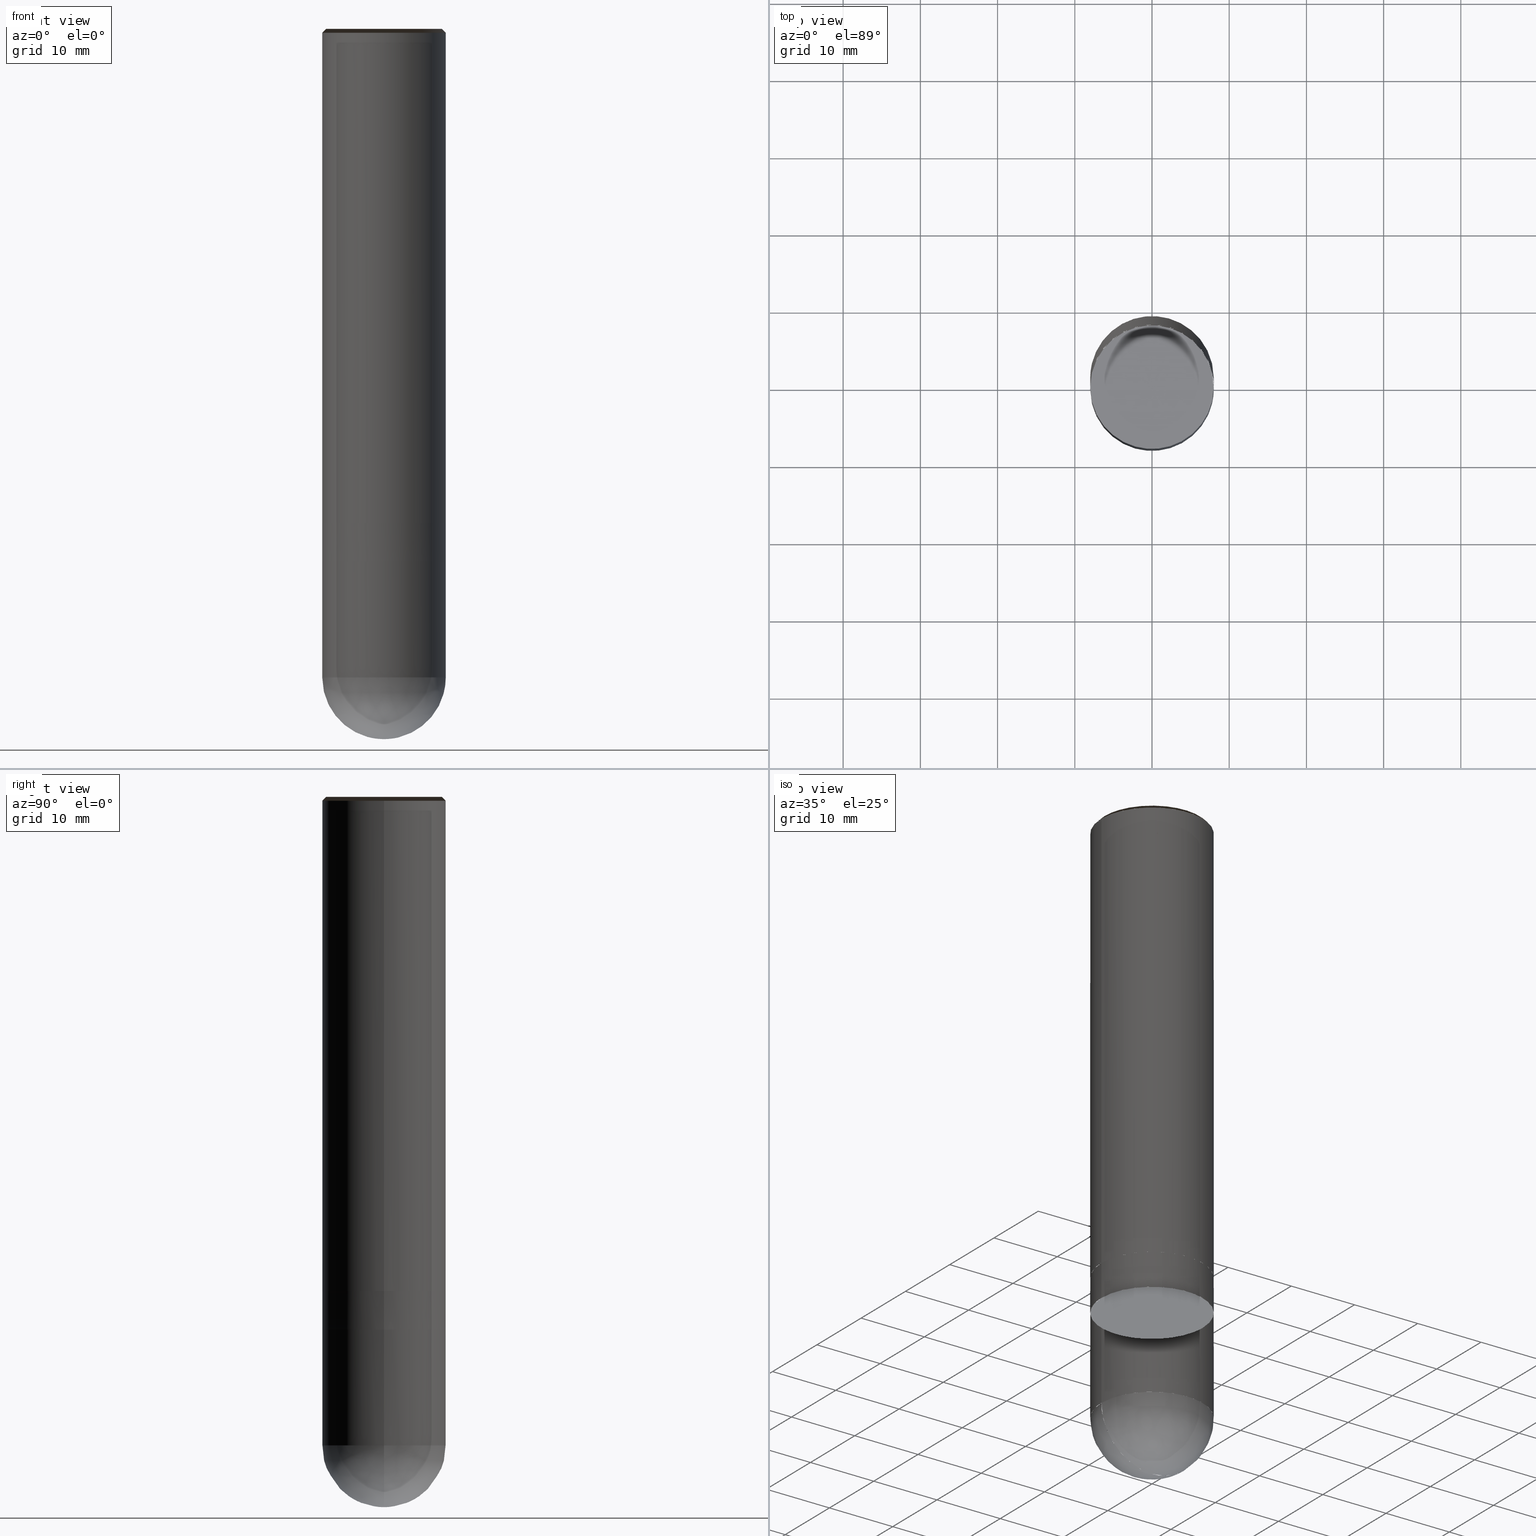
[diagram: canonical four-view strip — front | top / right | iso, engineering-drawing reading convention]
A machine part, canonical four-view strip (front | top / right | iso — engineering-drawing reading convention). The complete STEP part file that produces these views, byte-faithful:
ISO-10303-21;
HEADER;
/* Generated by ISBE GmbH (www.isbe.de) */
/* OPTION: using custom schema-name function */

FILE_DESCRIPTION(
/* description */ (''),
/* implementation_level */ '2;1');

FILE_NAME(
/*name*/ 'Drawing No  1241600   Issue 1',
/*time_stamp*/'2021-9-29T7:49:13',
/*author*/ ('ISBE GmbH'),
/*organization*/ ('ISBE GmbH'),
/*preprocessor_version*/ 'STEP IO v1.0',
/*originating_system*/ '',
/*authorisation*/ '');

FILE_SCHEMA (('AUTOMOTIVE_DESIGN'));
ENDSEC;

DATA;
#10=SHAPE_DEFINITION_REPRESENTATION(#11,#57);
#11=PRODUCT_DEFINITION_SHAPE('Document','',#13);
#12=PRODUCT_DEFINITION_CONTEXT('3D Mechanical Parts',#17,'design');
#13=PRODUCT_DEFINITION('A','First version',#14,#12);
#14=PRODUCT_DEFINITION_FORMATION_WITH_SPECIFIED_SOURCE('A','First version',#19,.MADE.);
#15=PRODUCT_RELATED_PRODUCT_CATEGORY('tool','tool',(#19));
#16=APPLICATION_PROTOCOL_DEFINITION('Draft International Standard', 'automotive_design',1999,#17);
#17=APPLICATION_CONTEXT('data for automotive mechanical design processes');
#18=PRODUCT_CONTEXT('3D Mechanical Parts',#17,'mechanical');
#19=PRODUCT('Document','Document','ISBE converted to STEP',(#18));
#20=(
LENGTH_UNIT()
NAMED_UNIT(*)
SI_UNIT(.MILLI.,.METRE.)
);
#21=(
NAMED_UNIT(*)
PLANE_ANGLE_UNIT()
SI_UNIT($,.RADIAN.)
);
#22=DIMENSIONAL_EXPONENTS(0.,0.,0.,0.,0.,0.,0.);
#23=PLANE_ANGLE_MEASURE_WITH_UNIT(PLANE_ANGLE_MEASURE(0.01745329252),#21);
#24=(
CONVERSION_BASED_UNIT('DEGREES',#23)
NAMED_UNIT(#22)
PLANE_ANGLE_UNIT()
);
#25=(
NAMED_UNIT(*)
SI_UNIT($,.STERADIAN.)
SOLID_ANGLE_UNIT()
);
#26=UNCERTAINTY_MEASURE_WITH_UNIT(LENGTH_MEASURE(0.001),#20, 'DISTANCE_ACCURACY_VALUE', 'Maximum model space distance between geometric entities at asserted connectivities');
#27=(
GEOMETRIC_REPRESENTATION_CONTEXT(3)
GLOBAL_UNCERTAINTY_ASSIGNED_CONTEXT((#26))
GLOBAL_UNIT_ASSIGNED_CONTEXT((#25,#24,#20))
REPRESENTATION_CONTEXT('ID1','3D')
);
#28=CARTESIAN_POINT('',(0.0,0.0,0.0));
#29=DIRECTION('',(1.0,0.0,0.0));
#30=DIRECTION('',(0.0,0.0,1.0));
#31=AXIS2_PLACEMENT_3D('',#28,#30,#29);
#32=CARTESIAN_POINT('',(0.0,0.0,0.0));
#33=DIRECTION('',(1.0,0.0,0.0));
#34=DIRECTION('',(0.0,0.0,1.0));
#35=AXIS2_PLACEMENT_3D('',#32,#34,#33);
#36=CARTESIAN_POINT('',(0.0,0.0,0.0));
#37=DIRECTION('',(1.0,0.0,0.0));
#38=DIRECTION('',(0.0,0.0,1.0));
#39=AXIS2_PLACEMENT_3D('',#36,#38,#37);
#40=CARTESIAN_POINT('',(0.0,0.0,0.0));
#41=DIRECTION('',(0.0,0.0,1.0));
#42=DIRECTION('',(1.0,0.0,0.0));
#43=AXIS2_PLACEMENT_3D('MCS',#40,#42,#41);
#44=CARTESIAN_POINT('',(0.0,0.0,64.0));
#45=DIRECTION('',(0.0,0.0,1.0));
#46=DIRECTION('',(1.0,0.0,0.0));
#47=AXIS2_PLACEMENT_3D('PCS',#44,#46,#45);
#48=CARTESIAN_POINT('',(0.0,0.0,-28.0));
#49=DIRECTION('',(0.0,0.0,1.0));
#50=DIRECTION('',(1.0,0.0,0.0));
#51=AXIS2_PLACEMENT_3D('CIP',#48,#50,#49);
#52=CARTESIAN_POINT('',(0.0,-8.0,-28.0));
#53=DIRECTION('',(0.0,0.0,1.0));
#54=DIRECTION('',(1.0,0.0,0.0));
#55=AXIS2_PLACEMENT_3D('CRP',#52,#54,#53);
#57=SHAPE_REPRESENTATION('Document',(#31,#35,#39,#43,#47,#51,#55),#27);
#58=DIRECTION('',(1.0,0.0,0.0));
#59=DIRECTION('',(0.0,0.0,1.0));
#60=CARTESIAN_POINT('',(-0.079995925518,-0.000807403523,-27.998717607461));
#61=CARTESIAN_POINT('',(-0.077487366167,-0.244424098799,-27.995889729606));
#62=CARTESIAN_POINT('',(-0.074331663513,-0.507143334232,-27.983563142003));
#63=CARTESIAN_POINT('',(-0.070315368472,-0.764959296461,-27.963032903594));
#64=CARTESIAN_POINT('',(-0.064958547675,-1.020952873464,-27.934320110586));
#65=CARTESIAN_POINT('',(-0.057815376368,-1.275489505215,-27.897454267316));
#66=CARTESIAN_POINT('',(-0.048453616472,-1.528501230611,-27.852473255929));
#67=CARTESIAN_POINT('',(-0.036453837751,-1.779794186089,-27.799423297455));
#68=CARTESIAN_POINT('',(-0.021410939883,-2.029123712272,-27.738358904312));
#69=CARTESIAN_POINT('',(-0.002936150291,-2.276218799343,-27.669342824293));
#70=CARTESIAN_POINT('',(0.019340866378,-2.520791548525,-27.592445976085));
#71=CARTESIAN_POINT('',(0.045769891528,-2.762541302717,-27.507747376398));
#72=CARTESIAN_POINT('',(0.076678069294,-3.001156655452,-27.415334058768));
#73=CARTESIAN_POINT('',(0.112367878369,-3.23631657468,-27.315300984127));
#74=CARTESIAN_POINT('',(0.15311517444,-3.467691174813,-27.207750943219));
#75=CARTESIAN_POINT('',(0.19916731665,-3.694942388735,-27.092794450984));
#76=CARTESIAN_POINT('',(0.250741390973,-3.917724667319,-26.970549632987));
#77=CARTESIAN_POINT('',(0.308022543408,-4.135685774457,-26.841142104043));
#78=CARTESIAN_POINT('',(0.37116243611,-4.348467714736,-26.704704839135));
#79=CARTESIAN_POINT('',(0.44027783981,-4.555707813534,-26.561378036776));
#80=CARTESIAN_POINT('',(0.51544937598,-4.757039958694,-26.411308974944));
#81=CARTESIAN_POINT('',(0.596720422218,-4.952096005845,-26.254651859744));
#82=CARTESIAN_POINT('',(0.684096194111,-5.140507344235,-26.091567666953));
#83=CARTESIAN_POINT('',(0.777543016489,-5.32190661591,-25.922223976603));
#84=CARTESIAN_POINT('',(0.87698779635,-5.495929577675,-25.746794800782));
#85=CARTESIAN_POINT('',(0.982317708936,-5.662217092359,-25.565460404828));
#86=CARTESIAN_POINT('',(1.093380107354,-5.820417233317,-25.378407122091));
#87=CARTESIAN_POINT('',(1.209982664884,-5.970187483802,-25.185827162462));
#88=CARTESIAN_POINT('',(1.331893757557,-6.11119701083,-24.98791841487));
#89=CARTESIAN_POINT('',(1.458843092871,-6.243128991345,-24.78488424393));
#90=CARTESIAN_POINT('',(1.590522588567,-6.36568296703,-24.576933280977));
#91=CARTESIAN_POINT('',(1.726587503259,-6.478577202867,-24.364279209684));
#92=CARTESIAN_POINT('',(1.866657818415,-6.581551023631,-24.147140546484));
#93=CARTESIAN_POINT('',(2.010319868791,-6.674367101912,-23.925740416032));
#94=CARTESIAN_POINT('',(2.15712821587,-6.75681367097,-23.700306321927));
#95=CARTESIAN_POINT('',(2.306607756295,-6.828706635819,-23.47106991294));
#96=CARTESIAN_POINT('',(2.458256054679,-6.889891556331,-23.238266744979));
#97=CARTESIAN_POINT('',(2.611545887569,-6.940245476944,-23.002136039035));
#98=CARTESIAN_POINT('',(2.765927982821,-6.979678578678,-22.76292043537));
#99=CARTESIAN_POINT('',(2.920833936192,-7.008135630606,-22.520865744189));
#100=CARTESIAN_POINT('',(3.075679284702,-7.025597219752,-22.276220693048));
#101=CARTESIAN_POINT('',(3.229866714167,-7.032080740482,-22.029236671276));
#102=CARTESIAN_POINT('',(3.382789376464,-7.027641126819,-21.780167471651));
#103=CARTESIAN_POINT('',(3.53383429045,-7.012371313808,-21.529269029611));
#104=CARTESIAN_POINT('',(3.682385799139,-6.986402416884,-21.276799160267));
#105=CARTESIAN_POINT('',(3.827829054737,-6.949903621272,-21.023017293476));
#106=CARTESIAN_POINT('',(3.969553502474,-6.903081776621,-20.768184207261));
#107=CARTESIAN_POINT('',(4.106956333882,-6.84618069539,-20.512561759846));
#108=CARTESIAN_POINT('',(4.239445880242,-6.779480156805,-20.256412620573));
#109=CARTESIAN_POINT('',(4.366444917386,-6.70329462156,-20.0));
#110=CARTESIAN_POINT('',(4.414468104312,-6.671766734232,-19.900497512438));
#111=CARTESIAN_POINT('',(4.462263654075,-6.639894809522,-19.800995024876));
#112=CARTESIAN_POINT('',(4.509829102042,-6.607680490942,-19.701492537313));
#113=CARTESIAN_POINT('',(4.557161995446,-6.57512543966,-19.601990049751));
#114=CARTESIAN_POINT('',(4.60425989351,-6.542231334416,-19.502487562189));
#115=CARTESIAN_POINT('',(4.651120367578,-6.508999871432,-19.402985074627));
#116=CARTESIAN_POINT('',(4.697741001234,-6.475432764328,-19.303482587065));
#117=CARTESIAN_POINT('',(4.744119390432,-6.441531744029,-19.203980099502));
#118=CARTESIAN_POINT('',(4.790253143616,-6.407298558681,-19.10447761194));
#119=CARTESIAN_POINT('',(4.836139881846,-6.372734973559,-19.004975124378));
#120=CARTESIAN_POINT('',(4.881777238919,-6.337842770973,-18.905472636816));
#121=CARTESIAN_POINT('',(4.927162861491,-6.302623750181,-18.805970149254));
#122=CARTESIAN_POINT('',(4.972294409202,-6.267079727291,-18.706467661692));
#123=CARTESIAN_POINT('',(5.017169554789,-6.231212535173,-18.606965174129));
#124=CARTESIAN_POINT('',(5.061785984214,-6.19502402336,-18.507462686567));
#125=CARTESIAN_POINT('',(5.10614139678,-6.158516057955,-18.407960199005));
#126=CARTESIAN_POINT('',(5.150233505247,-6.121690521533,-18.308457711443));
#127=CARTESIAN_POINT('',(5.194060035956,-6.084549313046,-18.208955223881));
#128=CARTESIAN_POINT('',(5.23761872894,-6.047094347722,-18.109452736318));
#129=CARTESIAN_POINT('',(5.280907338046,-6.009327556971,-18.009950248756));
#130=CARTESIAN_POINT('',(5.323923631045,-5.971250888281,-17.910447761194));
#131=CARTESIAN_POINT('',(5.366665389753,-5.93286630512,-17.810945273632));
#132=CARTESIAN_POINT('',(5.409130410141,-5.894175786833,-17.71144278607));
#133=CARTESIAN_POINT('',(5.451316502451,-5.855181328542,-17.611940298507));
#134=CARTESIAN_POINT('',(5.49322149131,-5.81588494104,-17.512437810945));
#135=CARTESIAN_POINT('',(5.534843215836,-5.776288650692,-17.412935323383));
#136=CARTESIAN_POINT('',(5.576179529759,-5.736394499326,-17.313432835821));
#137=CARTESIAN_POINT('',(5.617228301522,-5.696204544131,-17.213930348259));
#138=CARTESIAN_POINT('',(5.657987414399,-5.655720857548,-17.114427860697));
#139=CARTESIAN_POINT('',(5.698454766599,-5.614945527165,-17.014925373134));
#140=CARTESIAN_POINT('',(5.738628271375,-5.573880655609,-16.915422885572));
#141=CARTESIAN_POINT('',(5.778505857135,-5.532528360439,-16.81592039801));
#142=CARTESIAN_POINT('',(5.818085467544,-5.490890774032,-16.716417910448));
#143=CARTESIAN_POINT('',(5.857365061634,-5.44897004348,-16.616915422886));
#144=CARTESIAN_POINT('',(5.896342613908,-5.406768330474,-16.517412935323));
#145=CARTESIAN_POINT('',(5.935016114442,-5.364287811194,-16.417910447761));
#146=CARTESIAN_POINT('',(5.973383568992,-5.321530676196,-16.318407960199));
#147=CARTESIAN_POINT('',(6.011442999097,-5.278499130303,-16.218905472637));
#148=CARTESIAN_POINT('',(6.049192442178,-5.235195392485,-16.119402985075));
#149=CARTESIAN_POINT('',(6.086629951641,-5.191621695751,-16.019900497512));
#150=CARTESIAN_POINT('',(6.123753596977,-5.147780287027,-15.92039800995));
#151=CARTESIAN_POINT('',(6.160561463863,-5.103673427049,-15.820895522388));
#152=CARTESIAN_POINT('',(6.197051654259,-5.059303390236,-15.721393034826));
#153=CARTESIAN_POINT('',(6.233222286505,-5.014672464581,-15.621890547264));
#154=CARTESIAN_POINT('',(6.26907149542,-4.969782951529,-15.522388059701));
#155=CARTESIAN_POINT('',(6.3045974324,-4.924637165861,-15.422885572139));
#156=CARTESIAN_POINT('',(6.339798265507,-4.87923743557,-15.323383084577));
#157=CARTESIAN_POINT('',(6.374672179571,-4.833586101748,-15.223880597015));
#158=CARTESIAN_POINT('',(6.409217376276,-4.787685518456,-15.124378109453));
#159=CARTESIAN_POINT('',(6.443432074261,-4.741538052614,-15.024875621891));
#160=CARTESIAN_POINT('',(6.477314509204,-4.695146083867,-14.925373134328));
#161=CARTESIAN_POINT('',(6.510862933919,-4.648512004472,-14.825870646766));
#162=CARTESIAN_POINT('',(6.544075618442,-4.601638219168,-14.726368159204));
#163=CARTESIAN_POINT('',(6.576950850123,-4.554527145058,-14.626865671642));
#164=CARTESIAN_POINT('',(6.609486933712,-4.507181211478,-14.52736318408));
#165=CARTESIAN_POINT('',(6.641682191448,-4.459602859875,-14.427860696517));
#166=CARTESIAN_POINT('',(6.673534963145,-4.411794543684,-14.328358208955));
#167=CARTESIAN_POINT('',(6.705043606279,-4.363758728194,-14.228855721393));
#168=CARTESIAN_POINT('',(6.73620649607,-4.315497890429,-14.129353233831));
#169=CARTESIAN_POINT('',(6.767022025567,-4.267014519015,-14.029850746269));
#170=CARTESIAN_POINT('',(6.797488605732,-4.218311114052,-13.930348258706));
#171=CARTESIAN_POINT('',(6.827604665521,-4.169390186989,-13.830845771144));
#172=CARTESIAN_POINT('',(6.857368651962,-4.12025426049,-13.731343283582));
#173=CARTESIAN_POINT('',(6.886779030244,-4.070905868305,-13.63184079602));
#174=CARTESIAN_POINT('',(6.915834283784,-4.021347555141,-13.532338308458));
#175=CARTESIAN_POINT('',(6.944532914315,-3.971581876531,-13.432835820896));
#176=CARTESIAN_POINT('',(6.97287344196,-3.9216113987,-13.333333333333));
#177=CARTESIAN_POINT('',(7.000854405305,-3.871438698432,-13.233830845771));
#178=CARTESIAN_POINT('',(7.028474361481,-3.821066362942,-13.134328358209));
#179=CARTESIAN_POINT('',(7.055731886232,-3.770496989737,-13.034825870647));
#180=CARTESIAN_POINT('',(7.082625573992,-3.719733186485,-12.935323383085));
#181=CARTESIAN_POINT('',(7.109154037957,-3.668777570881,-12.835820895522));
#182=CARTESIAN_POINT('',(7.135315910156,-3.617632770511,-12.73631840796));
#183=CARTESIAN_POINT('',(7.161109841522,-3.566301422715,-12.636815920398));
#184=CARTESIAN_POINT('',(7.186534501961,-3.514786174453,-12.537313432836));
#185=CARTESIAN_POINT('',(7.21158858042,-3.46308968217,-12.437810945274));
#186=CARTESIAN_POINT('',(7.236270784958,-3.411214611654,-12.338308457711));
#187=CARTESIAN_POINT('',(7.260579842808,-3.359163637903,-12.238805970149));
#188=CARTESIAN_POINT('',(7.284514500444,-3.306939444987,-12.139303482587));
#189=CARTESIAN_POINT('',(7.30807352365,-3.254544725907,-12.039800995025));
#190=CARTESIAN_POINT('',(7.331255697575,-3.201982182457,-11.940298507463));
#191=CARTESIAN_POINT('',(7.354059826805,-3.149254525085,-11.840796019901));
#192=CARTESIAN_POINT('',(7.376484735419,-3.096364472754,-11.741293532338));
#193=CARTESIAN_POINT('',(7.398529267049,-3.043314752801,-11.641791044776));
#194=CARTESIAN_POINT('',(7.420192284945,-2.990108100796,-11.542288557214));
#195=CARTESIAN_POINT('',(7.441472672027,-2.936747260402,-11.442786069652));
#196=CARTESIAN_POINT('',(7.462369330947,-2.883234983233,-11.34328358209));
#197=CARTESIAN_POINT('',(7.482881184146,-2.829574028711,-11.243781094527));
#198=CARTESIAN_POINT('',(7.503007173905,-2.775767163925,-11.144278606965));
#199=CARTESIAN_POINT('',(7.522746262406,-2.721817163488,-11.044776119403));
#200=CARTESIAN_POINT('',(7.542097431778,-2.667726809396,-10.945273631841));
#201=CARTESIAN_POINT('',(7.561059684156,-2.61349889088,-10.845771144279));
#202=CARTESIAN_POINT('',(7.57963204173,-2.559136204264,-10.746268656716));
#203=CARTESIAN_POINT('',(7.597813546795,-2.504641552825,-10.646766169154));
#204=CARTESIAN_POINT('',(7.6156032618,-2.450017746642,-10.547263681592));
#205=CARTESIAN_POINT('',(7.633000269398,-2.395267602455,-10.44776119403));
#206=CARTESIAN_POINT('',(7.650003672492,-2.340393943518,-10.348258706468));
#207=CARTESIAN_POINT('',(7.666612594282,-2.285399599456,-10.248756218905));
#208=CARTESIAN_POINT('',(7.68282617831,-2.230287406115,-10.149253731343));
#209=CARTESIAN_POINT('',(7.698643588503,-2.175060205419,-10.049751243781));
#210=CARTESIAN_POINT('',(7.714064009219,-2.119720845224,-9.950248756219));
#211=CARTESIAN_POINT('',(7.729086645285,-2.064272179166,-9.850746268657));
#212=CARTESIAN_POINT('',(7.743710722042,-2.008717066522,-9.751243781095));
#213=CARTESIAN_POINT('',(7.757935485382,-1.953058372055,-9.651741293532));
#214=CARTESIAN_POINT('',(7.771760201789,-1.89729896587,-9.55223880597));
#215=CARTESIAN_POINT('',(7.785184158376,-1.841441723264,-9.452736318408));
#216=CARTESIAN_POINT('',(7.79820666292,-1.785489524583,-9.353233830846));
#217=CARTESIAN_POINT('',(7.810827043901,-1.729445255065,-9.253731343284));
#218=CARTESIAN_POINT('',(7.823044650534,-1.673311804699,-9.154228855721));
#219=CARTESIAN_POINT('',(7.834858852805,-1.61709206807,-9.054726368159));
#220=CARTESIAN_POINT('',(7.846269041501,-1.560788944215,-8.955223880597));
#221=CARTESIAN_POINT('',(7.857274628241,-1.50440533647,-8.855721393035));
#222=CARTESIAN_POINT('',(7.86787504551,-1.44794415232,-8.756218905473));
#223=CARTESIAN_POINT('',(7.878069746686,-1.391408303252,-8.65671641791));
#224=CARTESIAN_POINT('',(7.887858206065,-1.334800704602,-8.557213930348));
#225=CARTESIAN_POINT('',(7.897239918897,-1.278124275408,-8.457711442786));
#226=CARTESIAN_POINT('',(7.9062144014,-1.221381938254,-8.358208955224));
#227=CARTESIAN_POINT('',(7.914781190797,-1.164576619125,-8.258706467662));
#228=CARTESIAN_POINT('',(7.922939845329,-1.107711247253,-8.1592039801));
#229=CARTESIAN_POINT('',(7.930689944288,-1.050788754968,-8.059701492537));
#230=CARTESIAN_POINT('',(7.93803108803,-0.993812077542,-7.960199004975));
#231=CARTESIAN_POINT('',(7.944962898,-0.936784153045,-7.860696517413));
#232=CARTESIAN_POINT('',(7.951485016753,-0.879707922188,-7.761194029851));
#233=CARTESIAN_POINT('',(7.957597107966,-0.822586328172,-7.661691542289));
#234=CARTESIAN_POINT('',(7.963298856463,-0.765422316539,-7.562189054726));
#235=CARTESIAN_POINT('',(7.968589968227,-0.708218835018,-7.462686567164));
#236=CARTESIAN_POINT('',(7.973470170415,-0.650978833371,-7.363184079602));
#237=CARTESIAN_POINT('',(7.977939211375,-0.593705263247,-7.26368159204));
#238=CARTESIAN_POINT('',(7.981996860654,-0.536401078023,-7.164179104478));
#239=CARTESIAN_POINT('',(7.985642909016,-0.479069232655,-7.064676616915));
#240=CARTESIAN_POINT('',(7.988877168448,-0.421712683528,-6.965174129353));
#241=CARTESIAN_POINT('',(7.991699472171,-0.364334388297,-6.865671641791));
#242=CARTESIAN_POINT('',(7.994109674651,-0.306937305741,-6.766169154229));
#243=CARTESIAN_POINT('',(7.996107651601,-0.249524395608,-6.666666666667));
#244=CARTESIAN_POINT('',(7.997693299995,-0.19209861846,-6.567164179104));
#245=CARTESIAN_POINT('',(7.998866538066,-0.134662935524,-6.467661691542));
#246=CARTESIAN_POINT('',(7.999627305316,-0.077220308538,-6.36815920398));
#247=CARTESIAN_POINT('',(7.999975562513,-0.019773699597,-6.268656716418));
#248=CARTESIAN_POINT('',(7.9999112917,0.037673928998,-6.169154228856));
#249=CARTESIAN_POINT('',(7.999434496192,0.095119614893,-6.069651741294));
#250=CARTESIAN_POINT('',(7.998545200574,0.152560395835,-5.970149253731));
#251=CARTESIAN_POINT('',(7.997243450704,0.209993309823,-5.870646766169));
#252=CARTESIAN_POINT('',(7.995529313709,0.267415395262,-5.771144278607));
#253=CARTESIAN_POINT('',(7.993402877979,0.324823691117,-5.671641791045));
#254=CARTESIAN_POINT('',(7.990864253168,0.382215237063,-5.572139303483));
#255=CARTESIAN_POINT('',(7.987913570182,0.439587073636,-5.47263681592));
#256=CARTESIAN_POINT('',(7.984550981176,0.496936242392,-5.373134328358));
#257=CARTESIAN_POINT('',(7.980776659546,0.554259786056,-5.273631840796));
#258=CARTESIAN_POINT('',(7.976590799921,0.611554748671,-5.174129353234));
#259=CARTESIAN_POINT('',(7.971993618147,0.668818175757,-5.074626865672));
#260=CARTESIAN_POINT('',(0.079995925518,0.000807403523,-27.998717607461));
#261=CARTESIAN_POINT('',(0.077487366167,0.244424098799,-27.995889729606));
#262=CARTESIAN_POINT('',(0.074331663513,0.507143334232,-27.983563142003));
#263=CARTESIAN_POINT('',(0.070315368472,0.764959296461,-27.963032903594));
#264=CARTESIAN_POINT('',(0.064958547675,1.020952873464,-27.934320110586));
#265=CARTESIAN_POINT('',(0.057815376368,1.275489505215,-27.897454267316));
#266=CARTESIAN_POINT('',(0.048453616472,1.528501230611,-27.852473255929));
#267=CARTESIAN_POINT('',(0.036453837751,1.779794186089,-27.799423297455));
#268=CARTESIAN_POINT('',(0.021410939883,2.029123712272,-27.738358904312));
#269=CARTESIAN_POINT('',(0.002936150291,2.276218799343,-27.669342824293));
#270=CARTESIAN_POINT('',(-0.019340866378,2.520791548525,-27.592445976085));
#271=CARTESIAN_POINT('',(-0.045769891528,2.762541302717,-27.507747376398));
#272=CARTESIAN_POINT('',(-0.076678069294,3.001156655452,-27.415334058768));
#273=CARTESIAN_POINT('',(-0.112367878369,3.23631657468,-27.315300984127));
#274=CARTESIAN_POINT('',(-0.15311517444,3.467691174813,-27.207750943219));
#275=CARTESIAN_POINT('',(-0.19916731665,3.694942388735,-27.092794450984));
#276=CARTESIAN_POINT('',(-0.250741390973,3.917724667319,-26.970549632987));
#277=CARTESIAN_POINT('',(-0.308022543408,4.135685774457,-26.841142104043));
#278=CARTESIAN_POINT('',(-0.37116243611,4.348467714736,-26.704704839135));
#279=CARTESIAN_POINT('',(-0.44027783981,4.555707813534,-26.561378036776));
#280=CARTESIAN_POINT('',(-0.51544937598,4.757039958694,-26.411308974944));
#281=CARTESIAN_POINT('',(-0.596720422218,4.952096005845,-26.254651859744));
#282=CARTESIAN_POINT('',(-0.684096194111,5.140507344235,-26.091567666953));
#283=CARTESIAN_POINT('',(-0.777543016489,5.32190661591,-25.922223976603));
#284=CARTESIAN_POINT('',(-0.87698779635,5.495929577675,-25.746794800782));
#285=CARTESIAN_POINT('',(-0.982317708936,5.662217092359,-25.565460404828));
#286=CARTESIAN_POINT('',(-1.093380107354,5.820417233317,-25.378407122091));
#287=CARTESIAN_POINT('',(-1.209982664884,5.970187483802,-25.185827162462));
#288=CARTESIAN_POINT('',(-1.331893757557,6.11119701083,-24.98791841487));
#289=CARTESIAN_POINT('',(-1.458843092871,6.243128991345,-24.78488424393));
#290=CARTESIAN_POINT('',(-1.590522588567,6.36568296703,-24.576933280977));
#291=CARTESIAN_POINT('',(-1.726587503259,6.478577202867,-24.364279209684));
#292=CARTESIAN_POINT('',(-1.866657818415,6.581551023631,-24.147140546484));
#293=CARTESIAN_POINT('',(-2.010319868791,6.674367101912,-23.925740416032));
#294=CARTESIAN_POINT('',(-2.15712821587,6.75681367097,-23.700306321927));
#295=CARTESIAN_POINT('',(-2.306607756295,6.828706635819,-23.47106991294));
#296=CARTESIAN_POINT('',(-2.458256054679,6.889891556331,-23.238266744979));
#297=CARTESIAN_POINT('',(-2.611545887569,6.940245476944,-23.002136039035));
#298=CARTESIAN_POINT('',(-2.765927982821,6.979678578678,-22.76292043537));
#299=CARTESIAN_POINT('',(-2.920833936192,7.008135630606,-22.520865744189));
#300=CARTESIAN_POINT('',(-3.075679284702,7.025597219752,-22.276220693048));
#301=CARTESIAN_POINT('',(-3.229866714167,7.032080740482,-22.029236671276));
#302=CARTESIAN_POINT('',(-3.382789376464,7.027641126819,-21.780167471651));
#303=CARTESIAN_POINT('',(-3.53383429045,7.012371313808,-21.529269029611));
#304=CARTESIAN_POINT('',(-3.682385799139,6.986402416884,-21.276799160267));
#305=CARTESIAN_POINT('',(-3.827829054737,6.949903621272,-21.023017293476));
#306=CARTESIAN_POINT('',(-3.969553502474,6.903081776621,-20.768184207261));
#307=CARTESIAN_POINT('',(-4.106956333882,6.84618069539,-20.512561759846));
#308=CARTESIAN_POINT('',(-4.239445880242,6.779480156805,-20.256412620573));
#309=CARTESIAN_POINT('',(-4.366444917386,6.70329462156,-20.0));
#310=CARTESIAN_POINT('',(-4.414468104312,6.671766734232,-19.900497512438));
#311=CARTESIAN_POINT('',(-4.462263654075,6.639894809522,-19.800995024876));
#312=CARTESIAN_POINT('',(-4.509829102042,6.607680490942,-19.701492537313));
#313=CARTESIAN_POINT('',(-4.557161995446,6.57512543966,-19.601990049751));
#314=CARTESIAN_POINT('',(-4.60425989351,6.542231334416,-19.502487562189));
#315=CARTESIAN_POINT('',(-4.651120367578,6.508999871432,-19.402985074627));
#316=CARTESIAN_POINT('',(-4.697741001234,6.475432764328,-19.303482587065));
#317=CARTESIAN_POINT('',(-4.744119390432,6.441531744029,-19.203980099502));
#318=CARTESIAN_POINT('',(-4.790253143616,6.407298558681,-19.10447761194));
#319=CARTESIAN_POINT('',(-4.836139881846,6.372734973559,-19.004975124378));
#320=CARTESIAN_POINT('',(-4.881777238919,6.337842770973,-18.905472636816));
#321=CARTESIAN_POINT('',(-4.927162861491,6.302623750181,-18.805970149254));
#322=CARTESIAN_POINT('',(-4.972294409202,6.267079727291,-18.706467661692));
#323=CARTESIAN_POINT('',(-5.017169554789,6.231212535173,-18.606965174129));
#324=CARTESIAN_POINT('',(-5.061785984214,6.19502402336,-18.507462686567));
#325=CARTESIAN_POINT('',(-5.10614139678,6.158516057955,-18.407960199005));
#326=CARTESIAN_POINT('',(-5.150233505247,6.121690521533,-18.308457711443));
#327=CARTESIAN_POINT('',(-5.194060035956,6.084549313046,-18.208955223881));
#328=CARTESIAN_POINT('',(-5.23761872894,6.047094347722,-18.109452736318));
#329=CARTESIAN_POINT('',(-5.280907338046,6.009327556971,-18.009950248756));
#330=CARTESIAN_POINT('',(-5.323923631045,5.971250888281,-17.910447761194));
#331=CARTESIAN_POINT('',(-5.366665389753,5.93286630512,-17.810945273632));
#332=CARTESIAN_POINT('',(-5.409130410141,5.894175786833,-17.71144278607));
#333=CARTESIAN_POINT('',(-5.451316502451,5.855181328542,-17.611940298507));
#334=CARTESIAN_POINT('',(-5.49322149131,5.81588494104,-17.512437810945));
#335=CARTESIAN_POINT('',(-5.534843215836,5.776288650692,-17.412935323383));
#336=CARTESIAN_POINT('',(-5.576179529759,5.736394499326,-17.313432835821));
#337=CARTESIAN_POINT('',(-5.617228301522,5.696204544131,-17.213930348259));
#338=CARTESIAN_POINT('',(-5.657987414399,5.655720857548,-17.114427860697));
#339=CARTESIAN_POINT('',(-5.698454766599,5.614945527165,-17.014925373134));
#340=CARTESIAN_POINT('',(-5.738628271375,5.573880655609,-16.915422885572));
#341=CARTESIAN_POINT('',(-5.778505857135,5.532528360439,-16.81592039801));
#342=CARTESIAN_POINT('',(-5.818085467544,5.490890774032,-16.716417910448));
#343=CARTESIAN_POINT('',(-5.857365061634,5.44897004348,-16.616915422886));
#344=CARTESIAN_POINT('',(-5.896342613908,5.406768330474,-16.517412935323));
#345=CARTESIAN_POINT('',(-5.935016114441,5.364287811194,-16.417910447761));
#346=CARTESIAN_POINT('',(-5.973383568992,5.321530676196,-16.318407960199));
#347=CARTESIAN_POINT('',(-6.011442999097,5.278499130303,-16.218905472637));
#348=CARTESIAN_POINT('',(-6.049192442178,5.235195392485,-16.119402985075));
#349=CARTESIAN_POINT('',(-6.086629951641,5.191621695751,-16.019900497512));
#350=CARTESIAN_POINT('',(-6.123753596977,5.147780287027,-15.92039800995));
#351=CARTESIAN_POINT('',(-6.160561463863,5.103673427049,-15.820895522388));
#352=CARTESIAN_POINT('',(-6.197051654259,5.059303390236,-15.721393034826));
#353=CARTESIAN_POINT('',(-6.233222286505,5.014672464581,-15.621890547264));
#354=CARTESIAN_POINT('',(-6.26907149542,4.969782951529,-15.522388059701));
#355=CARTESIAN_POINT('',(-6.3045974324,4.924637165861,-15.422885572139));
#356=CARTESIAN_POINT('',(-6.339798265507,4.87923743557,-15.323383084577));
#357=CARTESIAN_POINT('',(-6.374672179571,4.833586101748,-15.223880597015));
#358=CARTESIAN_POINT('',(-6.409217376276,4.787685518457,-15.124378109453));
#359=CARTESIAN_POINT('',(-6.443432074261,4.741538052614,-15.024875621891));
#360=CARTESIAN_POINT('',(-6.477314509204,4.695146083867,-14.925373134328));
#361=CARTESIAN_POINT('',(-6.510862933919,4.648512004472,-14.825870646766));
#362=CARTESIAN_POINT('',(-6.544075618442,4.601638219168,-14.726368159204));
#363=CARTESIAN_POINT('',(-6.576950850123,4.554527145058,-14.626865671642));
#364=CARTESIAN_POINT('',(-6.609486933712,4.507181211478,-14.52736318408));
#365=CARTESIAN_POINT('',(-6.641682191448,4.459602859875,-14.427860696517));
#366=CARTESIAN_POINT('',(-6.673534963145,4.411794543684,-14.328358208955));
#367=CARTESIAN_POINT('',(-6.705043606279,4.363758728194,-14.228855721393));
#368=CARTESIAN_POINT('',(-6.73620649607,4.315497890429,-14.129353233831));
#369=CARTESIAN_POINT('',(-6.767022025567,4.267014519015,-14.029850746269));
#370=CARTESIAN_POINT('',(-6.797488605732,4.218311114053,-13.930348258706));
#371=CARTESIAN_POINT('',(-6.827604665521,4.169390186989,-13.830845771144));
#372=CARTESIAN_POINT('',(-6.857368651962,4.12025426049,-13.731343283582));
#373=CARTESIAN_POINT('',(-6.886779030244,4.070905868305,-13.63184079602));
#374=CARTESIAN_POINT('',(-6.915834283784,4.021347555141,-13.532338308458));
#375=CARTESIAN_POINT('',(-6.944532914315,3.971581876531,-13.432835820896));
#376=CARTESIAN_POINT('',(-6.97287344196,3.9216113987,-13.333333333333));
#377=CARTESIAN_POINT('',(-7.000854405305,3.871438698432,-13.233830845771));
#378=CARTESIAN_POINT('',(-7.028474361481,3.821066362942,-13.134328358209));
#379=CARTESIAN_POINT('',(-7.055731886232,3.770496989737,-13.034825870647));
#380=CARTESIAN_POINT('',(-7.082625573992,3.719733186485,-12.935323383085));
#381=CARTESIAN_POINT('',(-7.109154037957,3.668777570881,-12.835820895522));
#382=CARTESIAN_POINT('',(-7.135315910156,3.617632770511,-12.73631840796));
#383=CARTESIAN_POINT('',(-7.161109841522,3.566301422715,-12.636815920398));
#384=CARTESIAN_POINT('',(-7.186534501961,3.514786174453,-12.537313432836));
#385=CARTESIAN_POINT('',(-7.21158858042,3.46308968217,-12.437810945274));
#386=CARTESIAN_POINT('',(-7.236270784958,3.411214611654,-12.338308457711));
#387=CARTESIAN_POINT('',(-7.260579842808,3.359163637903,-12.238805970149));
#388=CARTESIAN_POINT('',(-7.284514500444,3.306939444987,-12.139303482587));
#389=CARTESIAN_POINT('',(-7.30807352365,3.254544725907,-12.039800995025));
#390=CARTESIAN_POINT('',(-7.331255697575,3.201982182457,-11.940298507463));
#391=CARTESIAN_POINT('',(-7.354059826805,3.149254525085,-11.840796019901));
#392=CARTESIAN_POINT('',(-7.376484735419,3.096364472754,-11.741293532338));
#393=CARTESIAN_POINT('',(-7.398529267049,3.043314752801,-11.641791044776));
#394=CARTESIAN_POINT('',(-7.420192284945,2.990108100796,-11.542288557214));
#395=CARTESIAN_POINT('',(-7.441472672027,2.936747260402,-11.442786069652));
#396=CARTESIAN_POINT('',(-7.462369330947,2.883234983233,-11.34328358209));
#397=CARTESIAN_POINT('',(-7.482881184146,2.829574028711,-11.243781094527));
#398=CARTESIAN_POINT('',(-7.503007173905,2.775767163925,-11.144278606965));
#399=CARTESIAN_POINT('',(-7.522746262406,2.721817163488,-11.044776119403));
#400=CARTESIAN_POINT('',(-7.542097431778,2.667726809396,-10.945273631841));
#401=CARTESIAN_POINT('',(-7.561059684156,2.61349889088,-10.845771144279));
#402=CARTESIAN_POINT('',(-7.57963204173,2.559136204264,-10.746268656716));
#403=CARTESIAN_POINT('',(-7.597813546795,2.504641552825,-10.646766169154));
#404=CARTESIAN_POINT('',(-7.6156032618,2.450017746642,-10.547263681592));
#405=CARTESIAN_POINT('',(-7.633000269398,2.395267602455,-10.44776119403));
#406=CARTESIAN_POINT('',(-7.650003672492,2.340393943518,-10.348258706468));
#407=CARTESIAN_POINT('',(-7.666612594282,2.285399599456,-10.248756218905));
#408=CARTESIAN_POINT('',(-7.68282617831,2.230287406115,-10.149253731343));
#409=CARTESIAN_POINT('',(-7.698643588503,2.175060205419,-10.049751243781));
#410=CARTESIAN_POINT('',(-7.714064009219,2.119720845224,-9.950248756219));
#411=CARTESIAN_POINT('',(-7.729086645285,2.064272179166,-9.850746268657));
#412=CARTESIAN_POINT('',(-7.743710722042,2.008717066522,-9.751243781095));
#413=CARTESIAN_POINT('',(-7.757935485382,1.953058372055,-9.651741293532));
#414=CARTESIAN_POINT('',(-7.771760201789,1.89729896587,-9.55223880597));
#415=CARTESIAN_POINT('',(-7.785184158376,1.841441723264,-9.452736318408));
#416=CARTESIAN_POINT('',(-7.79820666292,1.785489524583,-9.353233830846));
#417=CARTESIAN_POINT('',(-7.810827043901,1.729445255065,-9.253731343284));
#418=CARTESIAN_POINT('',(-7.823044650534,1.673311804699,-9.154228855721));
#419=CARTESIAN_POINT('',(-7.834858852805,1.61709206807,-9.054726368159));
#420=CARTESIAN_POINT('',(-7.846269041501,1.560788944215,-8.955223880597));
#421=CARTESIAN_POINT('',(-7.857274628241,1.50440533647,-8.855721393035));
#422=CARTESIAN_POINT('',(-7.86787504551,1.44794415232,-8.756218905473));
#423=CARTESIAN_POINT('',(-7.878069746686,1.391408303252,-8.65671641791));
#424=CARTESIAN_POINT('',(-7.887858206065,1.334800704602,-8.557213930348));
#425=CARTESIAN_POINT('',(-7.897239918897,1.278124275408,-8.457711442786));
#426=CARTESIAN_POINT('',(-7.9062144014,1.221381938254,-8.358208955224));
#427=CARTESIAN_POINT('',(-7.914781190797,1.164576619125,-8.258706467662));
#428=CARTESIAN_POINT('',(-7.922939845329,1.107711247254,-8.1592039801));
#429=CARTESIAN_POINT('',(-7.930689944288,1.050788754968,-8.059701492537));
#430=CARTESIAN_POINT('',(-7.93803108803,0.993812077542,-7.960199004975));
#431=CARTESIAN_POINT('',(-7.944962898,0.936784153045,-7.860696517413));
#432=CARTESIAN_POINT('',(-7.951485016753,0.879707922188,-7.761194029851));
#433=CARTESIAN_POINT('',(-7.957597107966,0.822586328172,-7.661691542289));
#434=CARTESIAN_POINT('',(-7.963298856463,0.765422316539,-7.562189054726));
#435=CARTESIAN_POINT('',(-7.968589968227,0.708218835018,-7.462686567164));
#436=CARTESIAN_POINT('',(-7.973470170415,0.650978833371,-7.363184079602));
#437=CARTESIAN_POINT('',(-7.977939211375,0.593705263247,-7.26368159204));
#438=CARTESIAN_POINT('',(-7.981996860654,0.536401078023,-7.164179104478));
#439=CARTESIAN_POINT('',(-7.985642909016,0.479069232655,-7.064676616915));
#440=CARTESIAN_POINT('',(-7.988877168448,0.421712683528,-6.965174129353));
#441=CARTESIAN_POINT('',(-7.991699472171,0.364334388297,-6.865671641791));
#442=CARTESIAN_POINT('',(-7.994109674651,0.306937305741,-6.766169154229));
#443=CARTESIAN_POINT('',(-7.996107651601,0.249524395608,-6.666666666667));
#444=CARTESIAN_POINT('',(-7.997693299995,0.19209861846,-6.567164179104));
#445=CARTESIAN_POINT('',(-7.998866538066,0.134662935524,-6.467661691542));
#446=CARTESIAN_POINT('',(-7.999627305316,0.077220308538,-6.36815920398));
#447=CARTESIAN_POINT('',(-7.999975562513,0.019773699597,-6.268656716418));
#448=CARTESIAN_POINT('',(-7.9999112917,-0.037673928998,-6.169154228856));
#449=CARTESIAN_POINT('',(-7.999434496192,-0.095119614893,-6.069651741294));
#450=CARTESIAN_POINT('',(-7.998545200574,-0.152560395835,-5.970149253731));
#451=CARTESIAN_POINT('',(-7.997243450704,-0.209993309823,-5.870646766169));
#452=CARTESIAN_POINT('',(-7.995529313709,-0.267415395262,-5.771144278607));
#453=CARTESIAN_POINT('',(-7.993402877979,-0.324823691117,-5.671641791045));
#454=CARTESIAN_POINT('',(-7.990864253168,-0.382215237062,-5.572139303483));
#455=CARTESIAN_POINT('',(-7.987913570182,-0.439587073636,-5.47263681592));
#456=CARTESIAN_POINT('',(-7.984550981176,-0.496936242392,-5.373134328358));
#457=CARTESIAN_POINT('',(-7.980776659546,-0.554259786056,-5.273631840796));
#458=CARTESIAN_POINT('',(-7.976590799921,-0.611554748671,-5.174129353234));
#459=CARTESIAN_POINT('',(-7.971993618147,-0.668818175757,-5.074626865672));
#460=CARTESIAN_POINT('',(0.0,0.0,-28.0));
#461=CARTESIAN_POINT('',(8.0,0.0,-28.0));
#462=CARTESIAN_POINT('',(8.0,8.0,-28.0));
#463=CARTESIAN_POINT('',(0.0,8.0,-28.0));
#464=CARTESIAN_POINT('',(-8.0,8.0,-28.0));
#465=CARTESIAN_POINT('',(-8.0,0.0,-28.0));
#466=CARTESIAN_POINT('',(8.0,0.0,-20.0));
#467=CARTESIAN_POINT('',(8.0,8.0,-20.0));
#468=CARTESIAN_POINT('',(0.0,8.0,-20.0));
#469=CARTESIAN_POINT('',(-8.0,8.0,-20.0));
#470=CARTESIAN_POINT('',(-8.0,0.0,-20.0));
#471=CARTESIAN_POINT('',(8.0,0.0,-5.0));
#472=CARTESIAN_POINT('',(8.0,8.0,-5.0));
#473=CARTESIAN_POINT('',(0.0,8.0,-5.0));
#474=CARTESIAN_POINT('',(-8.0,8.0,-5.0));
#475=CARTESIAN_POINT('',(-8.0,0.0,-5.0));
#476=CARTESIAN_POINT('',(0.0,0.0,-5.0));
#477=CARTESIAN_POINT('',(-8.0,-8.0,-28.0));
#478=CARTESIAN_POINT('',(0.0,-8.0,-28.0));
#479=CARTESIAN_POINT('',(8.0,-8.0,-28.0));
#480=CARTESIAN_POINT('',(-8.0,-8.0,-20.0));
#481=CARTESIAN_POINT('',(0.0,-8.0,-20.0));
#482=CARTESIAN_POINT('',(8.0,-8.0,-20.0));
#483=CARTESIAN_POINT('',(-8.0,-8.0,-5.0));
#484=CARTESIAN_POINT('',(0.0,-8.0,-5.0));
#485=CARTESIAN_POINT('',(8.0,-8.0,-5.0));
#486=CARTESIAN_POINT('',(8.0,0.0,0.0));
#487=CARTESIAN_POINT('',(8.0,8.0,0.0));
#488=CARTESIAN_POINT('',(0.0,8.0,0.0));
#489=CARTESIAN_POINT('',(-8.0,8.0,0.0));
#490=CARTESIAN_POINT('',(-8.0,0.0,0.0));
#491=CARTESIAN_POINT('',(8.0,0.0,63.5));
#492=CARTESIAN_POINT('',(8.0,8.0,63.5));
#493=CARTESIAN_POINT('',(0.0,8.0,63.5));
#494=CARTESIAN_POINT('',(-8.0,8.0,63.5));
#495=CARTESIAN_POINT('',(-8.0,0.0,63.5));
#496=CARTESIAN_POINT('',(7.5,0.0,64.0));
#497=CARTESIAN_POINT('',(7.5,7.5,64.0));
#498=CARTESIAN_POINT('',(0.0,7.5,64.0));
#499=CARTESIAN_POINT('',(-7.5,7.5,64.0));
#500=CARTESIAN_POINT('',(-7.5,0.0,64.0));
#501=CARTESIAN_POINT('',(0.0,0.0,64.0));
#502=CARTESIAN_POINT('',(-8.0,-8.0,0.0));
#503=CARTESIAN_POINT('',(0.0,-8.0,0.0));
#504=CARTESIAN_POINT('',(8.0,-8.0,0.0));
#505=CARTESIAN_POINT('',(-8.0,-8.0,63.5));
#506=CARTESIAN_POINT('',(0.0,-8.0,63.5));
#507=CARTESIAN_POINT('',(8.0,-8.0,63.5));
#508=CARTESIAN_POINT('',(-7.5,-7.5,64.0));
#509=CARTESIAN_POINT('',(0.0,-7.5,64.0));
#510=CARTESIAN_POINT('',(7.5,-7.5,64.0));
#511=(
BOUNDED_CURVE()
B_SPLINE_CURVE(1,(#60,#61,#62,#63,#64,#65,#66,#67,#68,#69,#70,#71,#72,#73,#74,#75,#76,#77,#78,#79,#80,#81,#82,#83,#84,#85,#86,#87,#88,#89,#90,#91,#92,#93,#94,#95,#96,#97,#98,#99,#100,#101,#102,#103,#104,#105,#106,#107,#108,#109,#110,#111,#112,#113,#114,#115,#116,#117,#118,#119,#120,#121,#122,#123,#124,#125,#126,#127,#128,#129,#130,#131,#132,#133,#134,#135,#136,#137,#138,#139,#140,#141,#142,#143,#144,#145,#146,#147,#148,#149,#150,#151,#152,#153,#154,#155,#156,#157,#158,#159,#160,#161,#162,#163,#164,#165,#166,#167,#168,#169,#170,#171,#172,#173,#174,#175,#176,#177,#178,#179,#180,#181,#182,#183,#184,#185,#186,#187,#188,#189,#190,#191,#192,#193,#194,#195,#196,#197,#198,#199,#200,#201,#202,#203,#204,#205,#206,#207,#208,#209,#210,#211,#212,#213,#214,#215,#216,#217,#218,#219,#220,#221,#222,#223,#224,#225,#226,#227,#228,#229,#230,#231,#232,#233,#234,#235,#236,#237,#238,#239,#240,#241,#242,#243,#244,#245,#246,#247,#248,#249,#250,#251,#252,#253,#254,#255,#256,#257,#258,#259),.UNSPECIFIED.,.F.,.F.)
B_SPLINE_CURVE_WITH_KNOTS((2,1,1,1,1,1,1,1,1,1,1,1,1,1,1,1,1,1,1,1,1,1,1,1,1,1,1,1,1,1,1,1,1,1,1,1,1,1,1,1,1,1,1,1,1,1,1,1,1,1,1,1,1,1,1,1,1,1,1,1,1,1,1,1,1,1,1,1,1,1,1,1,1,1,1,1,1,1,1,1,1,1,1,1,1,1,1,1,1,1,1,1,1,1,1,1,1,1,1,1,1,1,1,1,1,1,1,1,1,1,1,1,1,1,1,1,1,1,1,1,1,1,1,1,1,1,1,1,1,1,1,1,1,1,1,1,1,1,1,1,1,1,1,1,1,1,1,1,1,1,1,1,1,1,1,1,1,1,1,1,1,1,1,1,1,1,1,1,1,1,1,1,1,1,1,1,1,1,1,1,1,1,1,1,1,1,1,1,1,1,1,1,1,1,1,1,1,1,1,2),
(0.0,0.007971560181,0.01657722924,0.025040120921,0.033470006965,0.041888023197,0.050301387496,0.058713515966,0.067126530012,0.075542098459,0.083961780871,0.092387186921,0.100820056022,0.109262297027,0.117716004957,0.126183462725,0.134667131911,0.143169634927,0.151693730115,0.160242280944,0.168818220332,0.177424511088,0.186064103434,0.19473989061,0.203454663546,0.212211065579,0.221011548167,0.229858328469,0.238753349633,0.247698244478,0.256694303216,0.265742445688,0.274843198512,0.283996677408,0.29320257485,0.302460153097,0.311768242577,0.321125245487,0.330529144433,0.339977515859,0.349467547982,0.358996062904,0.368559542555,0.378154158105,0.387775802466,0.397420125495,0.407082571524,0.416758418822,0.426442820604,0.436130847212,0.439889974898,0.443649102583,0.447408230268,0.451167357953,0.454926485639,0.458685613324,0.462444741009,0.466203868694,0.46996299638,0.473722124065,0.47748125175,0.481240379435,0.484999507121,0.488758634806,0.492517762491,0.496276890176,0.500036017862,0.503795145547,0.507554273232,0.511313400917,0.515072528603,0.518831656288,0.522590783973,0.526349911658,0.530109039344,0.533868167029,0.537627294714,0.541386422399,0.545145550085,0.54890467777,0.552663805455,0.55642293314,0.560182060826,0.563941188511,0.567700316196,0.571459443881,0.575218571567,0.578977699252,0.582736826937,0.586495954622,0.590255082308,0.594014209993,0.597773337678,0.601532465363,0.605291593049,0.609050720734,0.612809848419,0.616568976104,0.62032810379,0.624087231475,0.62784635916,0.631605486845,0.635364614531,0.639123742216,0.642882869901,0.646641997586,0.650401125272,0.654160252957,0.657919380642,0.661678508327,0.665437636013,0.669196763698,0.672955891383,0.676715019068,0.680474146754,0.684233274439,0.687992402124,0.691751529809,0.695510657495,0.69926978518,0.703028912865,0.70678804055,0.710547168236,0.714306295921,0.718065423606,0.721824551291,0.725583678977,0.729342806662,0.733101934347,0.736861062032,0.740620189718,0.744379317403,0.748138445088,0.751897572773,0.755656700459,0.759415828144,0.763174955829,0.766934083514,0.7706932112,0.774452338885,0.77821146657,0.781970594255,0.785729721941,0.789488849626,0.793247977311,0.797007104996,0.800766232682,0.804525360367,0.808284488052,0.812043615737,0.815802743423,0.819561871108,0.823320998793,0.827080126478,0.830839254164,0.834598381849,0.838357509534,0.842116637219,0.845875764905,0.84963489259,0.853394020275,0.85715314796,0.860912275646,0.864671403331,0.868430531016,0.872189658701,0.875948786387,0.879707914072,0.883467041757,0.887226169442,0.890985297128,0.894744424813,0.898503552498,0.902262680183,0.906021807869,0.909780935554,0.913540063239,0.917299190924,0.92105831861,0.924817446295,0.92857657398,0.932335701665,0.936094829351,0.939853957036,0.943613084721,0.947372212406,0.951131340092,0.954890467777,0.958649595462,0.962408723147,0.966167850833,0.969926978518,0.973686106203,0.977445233888,0.981204361574,0.984963489259,0.988722616944,0.992481744629,0.996240872315,1.0),.UNSPECIFIED.)
CURVE()
GEOMETRIC_REPRESENTATION_ITEM()
RATIONAL_B_SPLINE_CURVE((1.0,1.0,1.0,1.0,1.0,1.0,1.0,1.0,1.0,1.0,1.0,1.0,1.0,1.0,1.0,1.0,1.0,1.0,1.0,1.0,1.0,1.0,1.0,1.0,1.0,1.0,1.0,1.0,1.0,1.0,1.0,1.0,1.0,1.0,1.0,1.0,1.0,1.0,1.0,1.0,1.0,1.0,1.0,1.0,1.0,1.0,1.0,1.0,1.0,1.0,1.0,1.0,1.0,1.0,1.0,1.0,1.0,1.0,1.0,1.0,1.0,1.0,1.0,1.0,1.0,1.0,1.0,1.0,1.0,1.0,1.0,1.0,1.0,1.0,1.0,1.0,1.0,1.0,1.0,1.0,1.0,1.0,1.0,1.0,1.0,1.0,1.0,1.0,1.0,1.0,1.0,1.0,1.0,1.0,1.0,1.0,1.0,1.0,1.0,1.0,1.0,1.0,1.0,1.0,1.0,1.0,1.0,1.0,1.0,1.0,1.0,1.0,1.0,1.0,1.0,1.0,1.0,1.0,1.0,1.0,1.0,1.0,1.0,1.0,1.0,1.0,1.0,1.0,1.0,1.0,1.0,1.0,1.0,1.0,1.0,1.0,1.0,1.0,1.0,1.0,1.0,1.0,1.0,1.0,1.0,1.0,1.0,1.0,1.0,1.0,1.0,1.0,1.0,1.0,1.0,1.0,1.0,1.0,1.0,1.0,1.0,1.0,1.0,1.0,1.0,1.0,1.0,1.0,1.0,1.0,1.0,1.0,1.0,1.0,1.0,1.0,1.0,1.0,1.0,1.0,1.0,1.0,1.0,1.0,1.0,1.0,1.0,1.0,1.0,1.0,1.0,1.0,1.0,1.0,1.0,1.0,1.0,1.0,1.0,1.0))
REPRESENTATION_ITEM('')
);
#512=(
BOUNDED_CURVE()
B_SPLINE_CURVE(1,(#260,#261,#262,#263,#264,#265,#266,#267,#268,#269,#270,#271,#272,#273,#274,#275,#276,#277,#278,#279,#280,#281,#282,#283,#284,#285,#286,#287,#288,#289,#290,#291,#292,#293,#294,#295,#296,#297,#298,#299,#300,#301,#302,#303,#304,#305,#306,#307,#308,#309,#310,#311,#312,#313,#314,#315,#316,#317,#318,#319,#320,#321,#322,#323,#324,#325,#326,#327,#328,#329,#330,#331,#332,#333,#334,#335,#336,#337,#338,#339,#340,#341,#342,#343,#344,#345,#346,#347,#348,#349,#350,#351,#352,#353,#354,#355,#356,#357,#358,#359,#360,#361,#362,#363,#364,#365,#366,#367,#368,#369,#370,#371,#372,#373,#374,#375,#376,#377,#378,#379,#380,#381,#382,#383,#384,#385,#386,#387,#388,#389,#390,#391,#392,#393,#394,#395,#396,#397,#398,#399,#400,#401,#402,#403,#404,#405,#406,#407,#408,#409,#410,#411,#412,#413,#414,#415,#416,#417,#418,#419,#420,#421,#422,#423,#424,#425,#426,#427,#428,#429,#430,#431,#432,#433,#434,#435,#436,#437,#438,#439,#440,#441,#442,#443,#444,#445,#446,#447,#448,#449,#450,#451,#452,#453,#454,#455,#456,#457,#458,#459),.UNSPECIFIED.,.F.,.F.)
B_SPLINE_CURVE_WITH_KNOTS((2,1,1,1,1,1,1,1,1,1,1,1,1,1,1,1,1,1,1,1,1,1,1,1,1,1,1,1,1,1,1,1,1,1,1,1,1,1,1,1,1,1,1,1,1,1,1,1,1,1,1,1,1,1,1,1,1,1,1,1,1,1,1,1,1,1,1,1,1,1,1,1,1,1,1,1,1,1,1,1,1,1,1,1,1,1,1,1,1,1,1,1,1,1,1,1,1,1,1,1,1,1,1,1,1,1,1,1,1,1,1,1,1,1,1,1,1,1,1,1,1,1,1,1,1,1,1,1,1,1,1,1,1,1,1,1,1,1,1,1,1,1,1,1,1,1,1,1,1,1,1,1,1,1,1,1,1,1,1,1,1,1,1,1,1,1,1,1,1,1,1,1,1,1,1,1,1,1,1,1,1,1,1,1,1,1,1,1,1,1,1,1,1,1,1,1,1,1,1,2),
(0.0,0.007971560181,0.01657722924,0.025040120921,0.033470006965,0.041888023197,0.050301387496,0.058713515966,0.067126530012,0.075542098459,0.083961780871,0.092387186921,0.100820056022,0.109262297027,0.117716004957,0.126183462725,0.134667131911,0.143169634927,0.151693730115,0.160242280944,0.168818220332,0.177424511088,0.186064103434,0.19473989061,0.203454663546,0.212211065579,0.221011548167,0.229858328469,0.238753349633,0.247698244478,0.256694303216,0.265742445688,0.274843198512,0.283996677408,0.29320257485,0.302460153097,0.311768242577,0.321125245487,0.330529144433,0.339977515859,0.349467547982,0.358996062904,0.368559542555,0.378154158105,0.387775802466,0.397420125495,0.407082571524,0.416758418822,0.426442820604,0.436130847212,0.439889974898,0.443649102583,0.447408230268,0.451167357953,0.454926485639,0.458685613324,0.462444741009,0.466203868694,0.46996299638,0.473722124065,0.47748125175,0.481240379435,0.484999507121,0.488758634806,0.492517762491,0.496276890176,0.500036017862,0.503795145547,0.507554273232,0.511313400917,0.515072528603,0.518831656288,0.522590783973,0.526349911658,0.530109039344,0.533868167029,0.537627294714,0.541386422399,0.545145550085,0.54890467777,0.552663805455,0.55642293314,0.560182060826,0.563941188511,0.567700316196,0.571459443881,0.575218571567,0.578977699252,0.582736826937,0.586495954622,0.590255082308,0.594014209993,0.597773337678,0.601532465363,0.605291593049,0.609050720734,0.612809848419,0.616568976104,0.62032810379,0.624087231475,0.62784635916,0.631605486845,0.635364614531,0.639123742216,0.642882869901,0.646641997586,0.650401125272,0.654160252957,0.657919380642,0.661678508327,0.665437636013,0.669196763698,0.672955891383,0.676715019068,0.680474146754,0.684233274439,0.687992402124,0.691751529809,0.695510657495,0.69926978518,0.703028912865,0.70678804055,0.710547168236,0.714306295921,0.718065423606,0.721824551291,0.725583678977,0.729342806662,0.733101934347,0.736861062032,0.740620189718,0.744379317403,0.748138445088,0.751897572773,0.755656700459,0.759415828144,0.763174955829,0.766934083514,0.7706932112,0.774452338885,0.77821146657,0.781970594255,0.785729721941,0.789488849626,0.793247977311,0.797007104996,0.800766232682,0.804525360367,0.808284488052,0.812043615737,0.815802743423,0.819561871108,0.823320998793,0.827080126478,0.830839254164,0.834598381849,0.838357509534,0.842116637219,0.845875764905,0.84963489259,0.853394020275,0.85715314796,0.860912275646,0.864671403331,0.868430531016,0.872189658701,0.875948786387,0.879707914072,0.883467041757,0.887226169442,0.890985297128,0.894744424813,0.898503552498,0.902262680183,0.906021807869,0.909780935554,0.913540063239,0.917299190924,0.92105831861,0.924817446295,0.92857657398,0.932335701665,0.936094829351,0.939853957036,0.943613084721,0.947372212406,0.951131340092,0.954890467777,0.958649595462,0.962408723147,0.966167850833,0.969926978518,0.973686106203,0.977445233888,0.981204361574,0.984963489259,0.988722616944,0.992481744629,0.996240872315,1.0),.UNSPECIFIED.)
CURVE()
GEOMETRIC_REPRESENTATION_ITEM()
RATIONAL_B_SPLINE_CURVE((1.0,1.0,1.0,1.0,1.0,1.0,1.0,1.0,1.0,1.0,1.0,1.0,1.0,1.0,1.0,1.0,1.0,1.0,1.0,1.0,1.0,1.0,1.0,1.0,1.0,1.0,1.0,1.0,1.0,1.0,1.0,1.0,1.0,1.0,1.0,1.0,1.0,1.0,1.0,1.0,1.0,1.0,1.0,1.0,1.0,1.0,1.0,1.0,1.0,1.0,1.0,1.0,1.0,1.0,1.0,1.0,1.0,1.0,1.0,1.0,1.0,1.0,1.0,1.0,1.0,1.0,1.0,1.0,1.0,1.0,1.0,1.0,1.0,1.0,1.0,1.0,1.0,1.0,1.0,1.0,1.0,1.0,1.0,1.0,1.0,1.0,1.0,1.0,1.0,1.0,1.0,1.0,1.0,1.0,1.0,1.0,1.0,1.0,1.0,1.0,1.0,1.0,1.0,1.0,1.0,1.0,1.0,1.0,1.0,1.0,1.0,1.0,1.0,1.0,1.0,1.0,1.0,1.0,1.0,1.0,1.0,1.0,1.0,1.0,1.0,1.0,1.0,1.0,1.0,1.0,1.0,1.0,1.0,1.0,1.0,1.0,1.0,1.0,1.0,1.0,1.0,1.0,1.0,1.0,1.0,1.0,1.0,1.0,1.0,1.0,1.0,1.0,1.0,1.0,1.0,1.0,1.0,1.0,1.0,1.0,1.0,1.0,1.0,1.0,1.0,1.0,1.0,1.0,1.0,1.0,1.0,1.0,1.0,1.0,1.0,1.0,1.0,1.0,1.0,1.0,1.0,1.0,1.0,1.0,1.0,1.0,1.0,1.0,1.0,1.0,1.0,1.0,1.0,1.0,1.0,1.0,1.0,1.0,1.0,1.0))
REPRESENTATION_ITEM('')
);
#513=SHAPE_REPRESENTATION_RELATIONSHIP('','',#57,#514);
#514=GEOMETRICALLY_BOUNDED_WIREFRAME_SHAPE_REPRESENTATION('Curves',(#515,#31),#27);
#515=GEOMETRIC_CURVE_SET('CurveSet',(#511,#512));
#516=(
BOUNDED_SURFACE()
B_SPLINE_SURFACE(2,2,(
(#460,#460,#460,#460,#460),
(#461,#462,#463,#464,#465),
(#466,#467,#468,#469,#470)
), .UNSPECIFIED.,.F.,.F.,.F.)
B_SPLINE_SURFACE_WITH_KNOTS((3,3),(3,2,3),(
0.0,1.0),(
0.0,0.5,1.0), .UNSPECIFIED.)
GEOMETRIC_REPRESENTATION_ITEM()
RATIONAL_B_SPLINE_SURFACE(((1.0,0.707106781187,1.0,0.707106781187,1.0),
(0.707106781187,0.5,0.707106781187,0.5,0.707106781187),
(1.0,0.707106781187,1.0,0.707106781187,1.0)
))
REPRESENTATION_ITEM('')
SURFACE()
);
#517=(
BOUNDED_CURVE()
B_SPLINE_CURVE(2,(#470,#465,#460),.UNSPECIFIED.,.F.,.F.)
B_SPLINE_CURVE_WITH_KNOTS((3,3),
(0.0,1.0),.UNSPECIFIED.)
CURVE()
GEOMETRIC_REPRESENTATION_ITEM()
RATIONAL_B_SPLINE_CURVE((1.0,0.707106781187,1.0))
REPRESENTATION_ITEM('')
);
#518=(
BOUNDED_CURVE()
B_SPLINE_CURVE(2,(#460,#461,#466),.UNSPECIFIED.,.F.,.F.)
B_SPLINE_CURVE_WITH_KNOTS((3,3),
(0.0,1.0),.UNSPECIFIED.)
CURVE()
GEOMETRIC_REPRESENTATION_ITEM()
RATIONAL_B_SPLINE_CURVE((1.0,0.707106781187,1.0))
REPRESENTATION_ITEM('')
);
#519=(
BOUNDED_CURVE()
B_SPLINE_CURVE(2,(#466,#467,#468,#469,#470),.UNSPECIFIED.,.F.,.F.)
B_SPLINE_CURVE_WITH_KNOTS((3,2,3),
(0.0,0.5,1.0),.UNSPECIFIED.)
CURVE()
GEOMETRIC_REPRESENTATION_ITEM()
RATIONAL_B_SPLINE_CURVE((1.0,0.707106781187,1.0,0.707106781187,1.0))
REPRESENTATION_ITEM('')
);
#520=VERTEX_POINT('',#460);
#521=VERTEX_POINT('',#466);
#522=VERTEX_POINT('',#470);
#523=EDGE_CURVE('',#522,#520,#517,.T.);
#524=EDGE_CURVE('',#520,#521,#518,.T.);
#525=EDGE_CURVE('',#521,#522,#519,.T.);
#526=ORIENTED_EDGE('',*,*,#523,.T.);
#527=ORIENTED_EDGE('',*,*,#524,.T.);
#528=ORIENTED_EDGE('',*,*,#525,.T.);
#529=EDGE_LOOP('',(#526,#527,#528));
#530=FACE_OUTER_BOUND('',#529,.T.);
#531=ADVANCED_FACE('',(#530),#516,.T.);
#532=(
BOUNDED_SURFACE()
B_SPLINE_SURFACE(1,2,(
(#466,#467,#468,#469,#470),
(#471,#472,#473,#474,#475)
), .UNSPECIFIED.,.F.,.F.,.F.)
B_SPLINE_SURFACE_WITH_KNOTS((2,2),(3,2,3),(
0.0,1.0),(
0.0,0.5,1.0), .UNSPECIFIED.)
GEOMETRIC_REPRESENTATION_ITEM()
RATIONAL_B_SPLINE_SURFACE(((1.0,0.707106781187,1.0,0.707106781187,1.0),
(1.0,0.707106781187,1.0,0.707106781187,1.0)
))
REPRESENTATION_ITEM('')
SURFACE()
);
#533=(
BOUNDED_CURVE()
B_SPLINE_CURVE(2,(#470,#469,#468,#467,#466),.UNSPECIFIED.,.F.,.F.)
B_SPLINE_CURVE_WITH_KNOTS((3,2,3),
(0.0,0.5,1.0),.UNSPECIFIED.)
CURVE()
GEOMETRIC_REPRESENTATION_ITEM()
RATIONAL_B_SPLINE_CURVE((1.0,0.707106781187,1.0,0.707106781187,1.0))
REPRESENTATION_ITEM('')
);
#534=(
BOUNDED_CURVE()
B_SPLINE_CURVE(1,(#466,#471),.UNSPECIFIED.,.F.,.F.)
B_SPLINE_CURVE_WITH_KNOTS((2,2),
(0.0,1.0),.UNSPECIFIED.)
CURVE()
GEOMETRIC_REPRESENTATION_ITEM()
RATIONAL_B_SPLINE_CURVE((1.0,1.0))
REPRESENTATION_ITEM('')
);
#535=(
BOUNDED_CURVE()
B_SPLINE_CURVE(2,(#471,#472,#473,#474,#475),.UNSPECIFIED.,.F.,.F.)
B_SPLINE_CURVE_WITH_KNOTS((3,2,3),
(0.0,0.5,1.0),.UNSPECIFIED.)
CURVE()
GEOMETRIC_REPRESENTATION_ITEM()
RATIONAL_B_SPLINE_CURVE((1.0,0.707106781187,1.0,0.707106781187,1.0))
REPRESENTATION_ITEM('')
);
#536=(
BOUNDED_CURVE()
B_SPLINE_CURVE(1,(#475,#470),.UNSPECIFIED.,.F.,.F.)
B_SPLINE_CURVE_WITH_KNOTS((2,2),
(0.0,1.0),.UNSPECIFIED.)
CURVE()
GEOMETRIC_REPRESENTATION_ITEM()
RATIONAL_B_SPLINE_CURVE((1.0,1.0))
REPRESENTATION_ITEM('')
);
#537=VERTEX_POINT('',#466);
#538=VERTEX_POINT('',#470);
#539=VERTEX_POINT('',#471);
#540=VERTEX_POINT('',#475);
#541=EDGE_CURVE('',#538,#537,#533,.T.);
#542=EDGE_CURVE('',#537,#539,#534,.T.);
#543=EDGE_CURVE('',#539,#540,#535,.T.);
#544=EDGE_CURVE('',#540,#538,#536,.T.);
#545=ORIENTED_EDGE('',*,*,#541,.T.);
#546=ORIENTED_EDGE('',*,*,#542,.T.);
#547=ORIENTED_EDGE('',*,*,#543,.T.);
#548=ORIENTED_EDGE('',*,*,#544,.T.);
#549=EDGE_LOOP('',(#545,#546,#547,#548));
#550=FACE_OUTER_BOUND('',#549,.T.);
#551=ADVANCED_FACE('',(#550),#532,.T.);
#552=(
BOUNDED_SURFACE()
B_SPLINE_SURFACE(1,2,(
(#471,#472,#473,#474,#475),
(#476,#476,#476,#476,#476)
), .UNSPECIFIED.,.F.,.F.,.F.)
B_SPLINE_SURFACE_WITH_KNOTS((2,2),(3,2,3),(
0.0,1.0),(
0.0,0.5,1.0), .UNSPECIFIED.)
GEOMETRIC_REPRESENTATION_ITEM()
RATIONAL_B_SPLINE_SURFACE(((1.0,0.707106781187,1.0,0.707106781187,1.0),
(1.0,0.707106781187,1.0,0.707106781187,1.0)
))
REPRESENTATION_ITEM('')
SURFACE()
);
#553=(
BOUNDED_CURVE()
B_SPLINE_CURVE(2,(#475,#474,#473,#472,#471),.UNSPECIFIED.,.F.,.F.)
B_SPLINE_CURVE_WITH_KNOTS((3,2,3),
(0.0,0.5,1.0),.UNSPECIFIED.)
CURVE()
GEOMETRIC_REPRESENTATION_ITEM()
RATIONAL_B_SPLINE_CURVE((1.0,0.707106781187,1.0,0.707106781187,1.0))
REPRESENTATION_ITEM('')
);
#554=(
BOUNDED_CURVE()
B_SPLINE_CURVE(1,(#471,#476),.UNSPECIFIED.,.F.,.F.)
B_SPLINE_CURVE_WITH_KNOTS((2,2),
(0.0,1.0),.UNSPECIFIED.)
CURVE()
GEOMETRIC_REPRESENTATION_ITEM()
RATIONAL_B_SPLINE_CURVE((1.0,1.0))
REPRESENTATION_ITEM('')
);
#555=(
BOUNDED_CURVE()
B_SPLINE_CURVE(1,(#476,#475),.UNSPECIFIED.,.F.,.F.)
B_SPLINE_CURVE_WITH_KNOTS((2,2),
(0.0,1.0),.UNSPECIFIED.)
CURVE()
GEOMETRIC_REPRESENTATION_ITEM()
RATIONAL_B_SPLINE_CURVE((1.0,1.0))
REPRESENTATION_ITEM('')
);
#556=VERTEX_POINT('',#471);
#557=VERTEX_POINT('',#475);
#558=VERTEX_POINT('',#476);
#559=EDGE_CURVE('',#557,#556,#553,.T.);
#560=EDGE_CURVE('',#556,#558,#554,.T.);
#561=EDGE_CURVE('',#558,#557,#555,.T.);
#562=ORIENTED_EDGE('',*,*,#559,.T.);
#563=ORIENTED_EDGE('',*,*,#560,.T.);
#564=ORIENTED_EDGE('',*,*,#561,.T.);
#565=EDGE_LOOP('',(#562,#563,#564));
#566=FACE_OUTER_BOUND('',#565,.T.);
#567=ADVANCED_FACE('',(#566),#552,.T.);
#568=(
BOUNDED_SURFACE()
B_SPLINE_SURFACE(2,2,(
(#460,#460,#460,#460,#460),
(#465,#477,#478,#479,#461),
(#470,#480,#481,#482,#466)
), .UNSPECIFIED.,.F.,.F.,.F.)
B_SPLINE_SURFACE_WITH_KNOTS((3,3),(3,2,3),(
0.0,1.0),(
0.0,0.5,1.0), .UNSPECIFIED.)
GEOMETRIC_REPRESENTATION_ITEM()
RATIONAL_B_SPLINE_SURFACE(((1.0,0.707106781187,1.0,0.707106781187,1.0),
(0.707106781187,0.5,0.707106781187,0.5,0.707106781187),
(1.0,0.707106781187,1.0,0.707106781187,1.0)
))
REPRESENTATION_ITEM('')
SURFACE()
);
#569=(
BOUNDED_CURVE()
B_SPLINE_CURVE(2,(#466,#461,#460),.UNSPECIFIED.,.F.,.F.)
B_SPLINE_CURVE_WITH_KNOTS((3,3),
(0.0,1.0),.UNSPECIFIED.)
CURVE()
GEOMETRIC_REPRESENTATION_ITEM()
RATIONAL_B_SPLINE_CURVE((1.0,0.707106781187,1.0))
REPRESENTATION_ITEM('')
);
#570=(
BOUNDED_CURVE()
B_SPLINE_CURVE(2,(#460,#465,#470),.UNSPECIFIED.,.F.,.F.)
B_SPLINE_CURVE_WITH_KNOTS((3,3),
(0.0,1.0),.UNSPECIFIED.)
CURVE()
GEOMETRIC_REPRESENTATION_ITEM()
RATIONAL_B_SPLINE_CURVE((1.0,0.707106781187,1.0))
REPRESENTATION_ITEM('')
);
#571=(
BOUNDED_CURVE()
B_SPLINE_CURVE(2,(#470,#480,#481,#482,#466),.UNSPECIFIED.,.F.,.F.)
B_SPLINE_CURVE_WITH_KNOTS((3,2,3),
(0.0,0.5,1.0),.UNSPECIFIED.)
CURVE()
GEOMETRIC_REPRESENTATION_ITEM()
RATIONAL_B_SPLINE_CURVE((1.0,0.707106781187,1.0,0.707106781187,1.0))
REPRESENTATION_ITEM('')
);
#572=VERTEX_POINT('',#460);
#573=VERTEX_POINT('',#466);
#574=VERTEX_POINT('',#470);
#575=EDGE_CURVE('',#573,#572,#569,.T.);
#576=EDGE_CURVE('',#572,#574,#570,.T.);
#577=EDGE_CURVE('',#574,#573,#571,.T.);
#578=ORIENTED_EDGE('',*,*,#575,.T.);
#579=ORIENTED_EDGE('',*,*,#576,.T.);
#580=ORIENTED_EDGE('',*,*,#577,.T.);
#581=EDGE_LOOP('',(#578,#579,#580));
#582=FACE_OUTER_BOUND('',#581,.T.);
#583=ADVANCED_FACE('',(#582),#568,.T.);
#584=(
BOUNDED_SURFACE()
B_SPLINE_SURFACE(1,2,(
(#470,#480,#481,#482,#466),
(#475,#483,#484,#485,#471)
), .UNSPECIFIED.,.F.,.F.,.F.)
B_SPLINE_SURFACE_WITH_KNOTS((2,2),(3,2,3),(
0.0,1.0),(
0.0,0.5,1.0), .UNSPECIFIED.)
GEOMETRIC_REPRESENTATION_ITEM()
RATIONAL_B_SPLINE_SURFACE(((1.0,0.707106781187,1.0,0.707106781187,1.0),
(1.0,0.707106781187,1.0,0.707106781187,1.0)
))
REPRESENTATION_ITEM('')
SURFACE()
);
#585=(
BOUNDED_CURVE()
B_SPLINE_CURVE(2,(#466,#482,#481,#480,#470),.UNSPECIFIED.,.F.,.F.)
B_SPLINE_CURVE_WITH_KNOTS((3,2,3),
(0.0,0.5,1.0),.UNSPECIFIED.)
CURVE()
GEOMETRIC_REPRESENTATION_ITEM()
RATIONAL_B_SPLINE_CURVE((1.0,0.707106781187,1.0,0.707106781187,1.0))
REPRESENTATION_ITEM('')
);
#586=(
BOUNDED_CURVE()
B_SPLINE_CURVE(1,(#470,#475),.UNSPECIFIED.,.F.,.F.)
B_SPLINE_CURVE_WITH_KNOTS((2,2),
(0.0,1.0),.UNSPECIFIED.)
CURVE()
GEOMETRIC_REPRESENTATION_ITEM()
RATIONAL_B_SPLINE_CURVE((1.0,1.0))
REPRESENTATION_ITEM('')
);
#587=(
BOUNDED_CURVE()
B_SPLINE_CURVE(2,(#475,#483,#484,#485,#471),.UNSPECIFIED.,.F.,.F.)
B_SPLINE_CURVE_WITH_KNOTS((3,2,3),
(0.0,0.5,1.0),.UNSPECIFIED.)
CURVE()
GEOMETRIC_REPRESENTATION_ITEM()
RATIONAL_B_SPLINE_CURVE((1.0,0.707106781187,1.0,0.707106781187,1.0))
REPRESENTATION_ITEM('')
);
#588=(
BOUNDED_CURVE()
B_SPLINE_CURVE(1,(#471,#466),.UNSPECIFIED.,.F.,.F.)
B_SPLINE_CURVE_WITH_KNOTS((2,2),
(0.0,1.0),.UNSPECIFIED.)
CURVE()
GEOMETRIC_REPRESENTATION_ITEM()
RATIONAL_B_SPLINE_CURVE((1.0,1.0))
REPRESENTATION_ITEM('')
);
#589=VERTEX_POINT('',#466);
#590=VERTEX_POINT('',#470);
#591=VERTEX_POINT('',#471);
#592=VERTEX_POINT('',#475);
#593=EDGE_CURVE('',#589,#590,#585,.T.);
#594=EDGE_CURVE('',#590,#592,#586,.T.);
#595=EDGE_CURVE('',#592,#591,#587,.T.);
#596=EDGE_CURVE('',#591,#589,#588,.T.);
#597=ORIENTED_EDGE('',*,*,#593,.T.);
#598=ORIENTED_EDGE('',*,*,#594,.T.);
#599=ORIENTED_EDGE('',*,*,#595,.T.);
#600=ORIENTED_EDGE('',*,*,#596,.T.);
#601=EDGE_LOOP('',(#597,#598,#599,#600));
#602=FACE_OUTER_BOUND('',#601,.T.);
#603=ADVANCED_FACE('',(#602),#584,.T.);
#604=(
BOUNDED_SURFACE()
B_SPLINE_SURFACE(1,2,(
(#475,#483,#484,#485,#471),
(#476,#476,#476,#476,#476)
), .UNSPECIFIED.,.F.,.F.,.F.)
B_SPLINE_SURFACE_WITH_KNOTS((2,2),(3,2,3),(
0.0,1.0),(
0.0,0.5,1.0), .UNSPECIFIED.)
GEOMETRIC_REPRESENTATION_ITEM()
RATIONAL_B_SPLINE_SURFACE(((1.0,0.707106781187,1.0,0.707106781187,1.0),
(1.0,0.707106781187,1.0,0.707106781187,1.0)
))
REPRESENTATION_ITEM('')
SURFACE()
);
#605=(
BOUNDED_CURVE()
B_SPLINE_CURVE(2,(#471,#485,#484,#483,#475),.UNSPECIFIED.,.F.,.F.)
B_SPLINE_CURVE_WITH_KNOTS((3,2,3),
(0.0,0.5,1.0),.UNSPECIFIED.)
CURVE()
GEOMETRIC_REPRESENTATION_ITEM()
RATIONAL_B_SPLINE_CURVE((1.0,0.707106781187,1.0,0.707106781187,1.0))
REPRESENTATION_ITEM('')
);
#606=(
BOUNDED_CURVE()
B_SPLINE_CURVE(1,(#475,#476),.UNSPECIFIED.,.F.,.F.)
B_SPLINE_CURVE_WITH_KNOTS((2,2),
(0.0,1.0),.UNSPECIFIED.)
CURVE()
GEOMETRIC_REPRESENTATION_ITEM()
RATIONAL_B_SPLINE_CURVE((1.0,1.0))
REPRESENTATION_ITEM('')
);
#607=(
BOUNDED_CURVE()
B_SPLINE_CURVE(1,(#476,#471),.UNSPECIFIED.,.F.,.F.)
B_SPLINE_CURVE_WITH_KNOTS((2,2),
(0.0,1.0),.UNSPECIFIED.)
CURVE()
GEOMETRIC_REPRESENTATION_ITEM()
RATIONAL_B_SPLINE_CURVE((1.0,1.0))
REPRESENTATION_ITEM('')
);
#608=VERTEX_POINT('',#471);
#609=VERTEX_POINT('',#475);
#610=VERTEX_POINT('',#476);
#611=EDGE_CURVE('',#608,#609,#605,.T.);
#612=EDGE_CURVE('',#609,#610,#606,.T.);
#613=EDGE_CURVE('',#610,#608,#607,.T.);
#614=ORIENTED_EDGE('',*,*,#611,.T.);
#615=ORIENTED_EDGE('',*,*,#612,.T.);
#616=ORIENTED_EDGE('',*,*,#613,.T.);
#617=EDGE_LOOP('',(#614,#615,#616));
#618=FACE_OUTER_BOUND('',#617,.T.);
#619=ADVANCED_FACE('',(#618),#604,.T.);
#620=CLOSED_SHELL('',(#531,#551,#567,#583,#603,#619));
#621=SHAPE_REPRESENTATION_RELATIONSHIP('','',#57,#622);
#622=ADVANCED_BREP_SHAPE_REPRESENTATION('Solid0',(#623,#31),#27);
#623=MANIFOLD_SOLID_BREP('brep',#620);
#624=(
BOUNDED_SURFACE()
B_SPLINE_SURFACE(1,2,(
(#476,#476,#476,#476,#476),
(#471,#472,#473,#474,#475)
), .UNSPECIFIED.,.F.,.F.,.F.)
B_SPLINE_SURFACE_WITH_KNOTS((2,2),(3,2,3),(
0.0,1.0),(
0.0,0.5,1.0), .UNSPECIFIED.)
GEOMETRIC_REPRESENTATION_ITEM()
RATIONAL_B_SPLINE_SURFACE(((1.0,0.707106781187,1.0,0.707106781187,1.0),
(1.0,0.707106781187,1.0,0.707106781187,1.0)
))
REPRESENTATION_ITEM('')
SURFACE()
);
#625=(
BOUNDED_CURVE()
B_SPLINE_CURVE(1,(#475,#476),.UNSPECIFIED.,.F.,.F.)
B_SPLINE_CURVE_WITH_KNOTS((2,2),
(0.0,1.0),.UNSPECIFIED.)
CURVE()
GEOMETRIC_REPRESENTATION_ITEM()
RATIONAL_B_SPLINE_CURVE((1.0,1.0))
REPRESENTATION_ITEM('')
);
#626=(
BOUNDED_CURVE()
B_SPLINE_CURVE(1,(#476,#471),.UNSPECIFIED.,.F.,.F.)
B_SPLINE_CURVE_WITH_KNOTS((2,2),
(0.0,1.0),.UNSPECIFIED.)
CURVE()
GEOMETRIC_REPRESENTATION_ITEM()
RATIONAL_B_SPLINE_CURVE((1.0,1.0))
REPRESENTATION_ITEM('')
);
#627=(
BOUNDED_CURVE()
B_SPLINE_CURVE(2,(#471,#472,#473,#474,#475),.UNSPECIFIED.,.F.,.F.)
B_SPLINE_CURVE_WITH_KNOTS((3,2,3),
(0.0,0.5,1.0),.UNSPECIFIED.)
CURVE()
GEOMETRIC_REPRESENTATION_ITEM()
RATIONAL_B_SPLINE_CURVE((1.0,0.707106781187,1.0,0.707106781187,1.0))
REPRESENTATION_ITEM('')
);
#628=VERTEX_POINT('',#471);
#629=VERTEX_POINT('',#475);
#630=VERTEX_POINT('',#476);
#631=EDGE_CURVE('',#629,#630,#625,.T.);
#632=EDGE_CURVE('',#630,#628,#626,.T.);
#633=EDGE_CURVE('',#628,#629,#627,.T.);
#634=ORIENTED_EDGE('',*,*,#631,.T.);
#635=ORIENTED_EDGE('',*,*,#632,.T.);
#636=ORIENTED_EDGE('',*,*,#633,.T.);
#637=EDGE_LOOP('',(#634,#635,#636));
#638=FACE_OUTER_BOUND('',#637,.T.);
#639=ADVANCED_FACE('',(#638),#624,.T.);
#640=(
BOUNDED_SURFACE()
B_SPLINE_SURFACE(1,2,(
(#471,#472,#473,#474,#475),
(#486,#487,#488,#489,#490)
), .UNSPECIFIED.,.F.,.F.,.F.)
B_SPLINE_SURFACE_WITH_KNOTS((2,2),(3,2,3),(
0.0,1.0),(
0.0,0.5,1.0), .UNSPECIFIED.)
GEOMETRIC_REPRESENTATION_ITEM()
RATIONAL_B_SPLINE_SURFACE(((1.0,0.707106781187,1.0,0.707106781187,1.0),
(1.0,0.707106781187,1.0,0.707106781187,1.0)
))
REPRESENTATION_ITEM('')
SURFACE()
);
#641=(
BOUNDED_CURVE()
B_SPLINE_CURVE(2,(#475,#474,#473,#472,#471),.UNSPECIFIED.,.F.,.F.)
B_SPLINE_CURVE_WITH_KNOTS((3,2,3),
(0.0,0.5,1.0),.UNSPECIFIED.)
CURVE()
GEOMETRIC_REPRESENTATION_ITEM()
RATIONAL_B_SPLINE_CURVE((1.0,0.707106781187,1.0,0.707106781187,1.0))
REPRESENTATION_ITEM('')
);
#642=(
BOUNDED_CURVE()
B_SPLINE_CURVE(1,(#471,#486),.UNSPECIFIED.,.F.,.F.)
B_SPLINE_CURVE_WITH_KNOTS((2,2),
(0.0,1.0),.UNSPECIFIED.)
CURVE()
GEOMETRIC_REPRESENTATION_ITEM()
RATIONAL_B_SPLINE_CURVE((1.0,1.0))
REPRESENTATION_ITEM('')
);
#643=(
BOUNDED_CURVE()
B_SPLINE_CURVE(2,(#486,#487,#488,#489,#490),.UNSPECIFIED.,.F.,.F.)
B_SPLINE_CURVE_WITH_KNOTS((3,2,3),
(0.0,0.5,1.0),.UNSPECIFIED.)
CURVE()
GEOMETRIC_REPRESENTATION_ITEM()
RATIONAL_B_SPLINE_CURVE((1.0,0.707106781187,1.0,0.707106781187,1.0))
REPRESENTATION_ITEM('')
);
#644=(
BOUNDED_CURVE()
B_SPLINE_CURVE(1,(#490,#475),.UNSPECIFIED.,.F.,.F.)
B_SPLINE_CURVE_WITH_KNOTS((2,2),
(0.0,1.0),.UNSPECIFIED.)
CURVE()
GEOMETRIC_REPRESENTATION_ITEM()
RATIONAL_B_SPLINE_CURVE((1.0,1.0))
REPRESENTATION_ITEM('')
);
#645=VERTEX_POINT('',#471);
#646=VERTEX_POINT('',#475);
#647=VERTEX_POINT('',#486);
#648=VERTEX_POINT('',#490);
#649=EDGE_CURVE('',#646,#645,#641,.T.);
#650=EDGE_CURVE('',#645,#647,#642,.T.);
#651=EDGE_CURVE('',#647,#648,#643,.T.);
#652=EDGE_CURVE('',#648,#646,#644,.T.);
#653=ORIENTED_EDGE('',*,*,#649,.T.);
#654=ORIENTED_EDGE('',*,*,#650,.T.);
#655=ORIENTED_EDGE('',*,*,#651,.T.);
#656=ORIENTED_EDGE('',*,*,#652,.T.);
#657=EDGE_LOOP('',(#653,#654,#655,#656));
#658=FACE_OUTER_BOUND('',#657,.T.);
#659=ADVANCED_FACE('',(#658),#640,.T.);
#660=(
BOUNDED_SURFACE()
B_SPLINE_SURFACE(1,2,(
(#486,#487,#488,#489,#490),
(#491,#492,#493,#494,#495)
), .UNSPECIFIED.,.F.,.F.,.F.)
B_SPLINE_SURFACE_WITH_KNOTS((2,2),(3,2,3),(
0.0,1.0),(
0.0,0.5,1.0), .UNSPECIFIED.)
GEOMETRIC_REPRESENTATION_ITEM()
RATIONAL_B_SPLINE_SURFACE(((1.0,0.707106781187,1.0,0.707106781187,1.0),
(1.0,0.707106781187,1.0,0.707106781187,1.0)
))
REPRESENTATION_ITEM('')
SURFACE()
);
#661=(
BOUNDED_CURVE()
B_SPLINE_CURVE(2,(#490,#489,#488,#487,#486),.UNSPECIFIED.,.F.,.F.)
B_SPLINE_CURVE_WITH_KNOTS((3,2,3),
(0.0,0.5,1.0),.UNSPECIFIED.)
CURVE()
GEOMETRIC_REPRESENTATION_ITEM()
RATIONAL_B_SPLINE_CURVE((1.0,0.707106781187,1.0,0.707106781187,1.0))
REPRESENTATION_ITEM('')
);
#662=(
BOUNDED_CURVE()
B_SPLINE_CURVE(1,(#486,#491),.UNSPECIFIED.,.F.,.F.)
B_SPLINE_CURVE_WITH_KNOTS((2,2),
(0.0,1.0),.UNSPECIFIED.)
CURVE()
GEOMETRIC_REPRESENTATION_ITEM()
RATIONAL_B_SPLINE_CURVE((1.0,1.0))
REPRESENTATION_ITEM('')
);
#663=(
BOUNDED_CURVE()
B_SPLINE_CURVE(2,(#491,#492,#493,#494,#495),.UNSPECIFIED.,.F.,.F.)
B_SPLINE_CURVE_WITH_KNOTS((3,2,3),
(0.0,0.5,1.0),.UNSPECIFIED.)
CURVE()
GEOMETRIC_REPRESENTATION_ITEM()
RATIONAL_B_SPLINE_CURVE((1.0,0.707106781187,1.0,0.707106781187,1.0))
REPRESENTATION_ITEM('')
);
#664=(
BOUNDED_CURVE()
B_SPLINE_CURVE(1,(#495,#490),.UNSPECIFIED.,.F.,.F.)
B_SPLINE_CURVE_WITH_KNOTS((2,2),
(0.0,1.0),.UNSPECIFIED.)
CURVE()
GEOMETRIC_REPRESENTATION_ITEM()
RATIONAL_B_SPLINE_CURVE((1.0,1.0))
REPRESENTATION_ITEM('')
);
#665=VERTEX_POINT('',#486);
#666=VERTEX_POINT('',#490);
#667=VERTEX_POINT('',#491);
#668=VERTEX_POINT('',#495);
#669=EDGE_CURVE('',#666,#665,#661,.T.);
#670=EDGE_CURVE('',#665,#667,#662,.T.);
#671=EDGE_CURVE('',#667,#668,#663,.T.);
#672=EDGE_CURVE('',#668,#666,#664,.T.);
#673=ORIENTED_EDGE('',*,*,#669,.T.);
#674=ORIENTED_EDGE('',*,*,#670,.T.);
#675=ORIENTED_EDGE('',*,*,#671,.T.);
#676=ORIENTED_EDGE('',*,*,#672,.T.);
#677=EDGE_LOOP('',(#673,#674,#675,#676));
#678=FACE_OUTER_BOUND('',#677,.T.);
#679=ADVANCED_FACE('',(#678),#660,.T.);
#680=(
BOUNDED_SURFACE()
B_SPLINE_SURFACE(1,2,(
(#491,#492,#493,#494,#495),
(#496,#497,#498,#499,#500)
), .UNSPECIFIED.,.F.,.F.,.F.)
B_SPLINE_SURFACE_WITH_KNOTS((2,2),(3,2,3),(
0.0,1.0),(
0.0,0.5,1.0), .UNSPECIFIED.)
GEOMETRIC_REPRESENTATION_ITEM()
RATIONAL_B_SPLINE_SURFACE(((1.0,0.707106781187,1.0,0.707106781187,1.0),
(1.0,0.707106781187,1.0,0.707106781187,1.0)
))
REPRESENTATION_ITEM('')
SURFACE()
);
#681=(
BOUNDED_CURVE()
B_SPLINE_CURVE(2,(#495,#494,#493,#492,#491),.UNSPECIFIED.,.F.,.F.)
B_SPLINE_CURVE_WITH_KNOTS((3,2,3),
(0.0,0.5,1.0),.UNSPECIFIED.)
CURVE()
GEOMETRIC_REPRESENTATION_ITEM()
RATIONAL_B_SPLINE_CURVE((1.0,0.707106781187,1.0,0.707106781187,1.0))
REPRESENTATION_ITEM('')
);
#682=(
BOUNDED_CURVE()
B_SPLINE_CURVE(1,(#491,#496),.UNSPECIFIED.,.F.,.F.)
B_SPLINE_CURVE_WITH_KNOTS((2,2),
(0.0,1.0),.UNSPECIFIED.)
CURVE()
GEOMETRIC_REPRESENTATION_ITEM()
RATIONAL_B_SPLINE_CURVE((1.0,1.0))
REPRESENTATION_ITEM('')
);
#683=(
BOUNDED_CURVE()
B_SPLINE_CURVE(2,(#496,#497,#498,#499,#500),.UNSPECIFIED.,.F.,.F.)
B_SPLINE_CURVE_WITH_KNOTS((3,2,3),
(0.0,0.5,1.0),.UNSPECIFIED.)
CURVE()
GEOMETRIC_REPRESENTATION_ITEM()
RATIONAL_B_SPLINE_CURVE((1.0,0.707106781187,1.0,0.707106781187,1.0))
REPRESENTATION_ITEM('')
);
#684=(
BOUNDED_CURVE()
B_SPLINE_CURVE(1,(#500,#495),.UNSPECIFIED.,.F.,.F.)
B_SPLINE_CURVE_WITH_KNOTS((2,2),
(0.0,1.0),.UNSPECIFIED.)
CURVE()
GEOMETRIC_REPRESENTATION_ITEM()
RATIONAL_B_SPLINE_CURVE((1.0,1.0))
REPRESENTATION_ITEM('')
);
#685=VERTEX_POINT('',#491);
#686=VERTEX_POINT('',#495);
#687=VERTEX_POINT('',#496);
#688=VERTEX_POINT('',#500);
#689=EDGE_CURVE('',#686,#685,#681,.T.);
#690=EDGE_CURVE('',#685,#687,#682,.T.);
#691=EDGE_CURVE('',#687,#688,#683,.T.);
#692=EDGE_CURVE('',#688,#686,#684,.T.);
#693=ORIENTED_EDGE('',*,*,#689,.T.);
#694=ORIENTED_EDGE('',*,*,#690,.T.);
#695=ORIENTED_EDGE('',*,*,#691,.T.);
#696=ORIENTED_EDGE('',*,*,#692,.T.);
#697=EDGE_LOOP('',(#693,#694,#695,#696));
#698=FACE_OUTER_BOUND('',#697,.T.);
#699=ADVANCED_FACE('',(#698),#680,.T.);
#700=(
BOUNDED_SURFACE()
B_SPLINE_SURFACE(1,2,(
(#496,#497,#498,#499,#500),
(#501,#501,#501,#501,#501)
), .UNSPECIFIED.,.F.,.F.,.F.)
B_SPLINE_SURFACE_WITH_KNOTS((2,2),(3,2,3),(
0.0,1.0),(
0.0,0.5,1.0), .UNSPECIFIED.)
GEOMETRIC_REPRESENTATION_ITEM()
RATIONAL_B_SPLINE_SURFACE(((1.0,0.707106781187,1.0,0.707106781187,1.0),
(1.0,0.707106781187,1.0,0.707106781187,1.0)
))
REPRESENTATION_ITEM('')
SURFACE()
);
#701=(
BOUNDED_CURVE()
B_SPLINE_CURVE(2,(#500,#499,#498,#497,#496),.UNSPECIFIED.,.F.,.F.)
B_SPLINE_CURVE_WITH_KNOTS((3,2,3),
(0.0,0.5,1.0),.UNSPECIFIED.)
CURVE()
GEOMETRIC_REPRESENTATION_ITEM()
RATIONAL_B_SPLINE_CURVE((1.0,0.707106781187,1.0,0.707106781187,1.0))
REPRESENTATION_ITEM('')
);
#702=(
BOUNDED_CURVE()
B_SPLINE_CURVE(1,(#496,#501),.UNSPECIFIED.,.F.,.F.)
B_SPLINE_CURVE_WITH_KNOTS((2,2),
(0.0,1.0),.UNSPECIFIED.)
CURVE()
GEOMETRIC_REPRESENTATION_ITEM()
RATIONAL_B_SPLINE_CURVE((1.0,1.0))
REPRESENTATION_ITEM('')
);
#703=(
BOUNDED_CURVE()
B_SPLINE_CURVE(1,(#501,#500),.UNSPECIFIED.,.F.,.F.)
B_SPLINE_CURVE_WITH_KNOTS((2,2),
(0.0,1.0),.UNSPECIFIED.)
CURVE()
GEOMETRIC_REPRESENTATION_ITEM()
RATIONAL_B_SPLINE_CURVE((1.0,1.0))
REPRESENTATION_ITEM('')
);
#704=VERTEX_POINT('',#496);
#705=VERTEX_POINT('',#500);
#706=VERTEX_POINT('',#501);
#707=EDGE_CURVE('',#705,#704,#701,.T.);
#708=EDGE_CURVE('',#704,#706,#702,.T.);
#709=EDGE_CURVE('',#706,#705,#703,.T.);
#710=ORIENTED_EDGE('',*,*,#707,.T.);
#711=ORIENTED_EDGE('',*,*,#708,.T.);
#712=ORIENTED_EDGE('',*,*,#709,.T.);
#713=EDGE_LOOP('',(#710,#711,#712));
#714=FACE_OUTER_BOUND('',#713,.T.);
#715=ADVANCED_FACE('',(#714),#700,.T.);
#716=(
BOUNDED_SURFACE()
B_SPLINE_SURFACE(1,2,(
(#476,#476,#476,#476,#476),
(#475,#483,#484,#485,#471)
), .UNSPECIFIED.,.F.,.F.,.F.)
B_SPLINE_SURFACE_WITH_KNOTS((2,2),(3,2,3),(
0.0,1.0),(
0.0,0.5,1.0), .UNSPECIFIED.)
GEOMETRIC_REPRESENTATION_ITEM()
RATIONAL_B_SPLINE_SURFACE(((1.0,0.707106781187,1.0,0.707106781187,1.0),
(1.0,0.707106781187,1.0,0.707106781187,1.0)
))
REPRESENTATION_ITEM('')
SURFACE()
);
#717=(
BOUNDED_CURVE()
B_SPLINE_CURVE(1,(#471,#476),.UNSPECIFIED.,.F.,.F.)
B_SPLINE_CURVE_WITH_KNOTS((2,2),
(0.0,1.0),.UNSPECIFIED.)
CURVE()
GEOMETRIC_REPRESENTATION_ITEM()
RATIONAL_B_SPLINE_CURVE((1.0,1.0))
REPRESENTATION_ITEM('')
);
#718=(
BOUNDED_CURVE()
B_SPLINE_CURVE(1,(#476,#475),.UNSPECIFIED.,.F.,.F.)
B_SPLINE_CURVE_WITH_KNOTS((2,2),
(0.0,1.0),.UNSPECIFIED.)
CURVE()
GEOMETRIC_REPRESENTATION_ITEM()
RATIONAL_B_SPLINE_CURVE((1.0,1.0))
REPRESENTATION_ITEM('')
);
#719=(
BOUNDED_CURVE()
B_SPLINE_CURVE(2,(#475,#483,#484,#485,#471),.UNSPECIFIED.,.F.,.F.)
B_SPLINE_CURVE_WITH_KNOTS((3,2,3),
(0.0,0.5,1.0),.UNSPECIFIED.)
CURVE()
GEOMETRIC_REPRESENTATION_ITEM()
RATIONAL_B_SPLINE_CURVE((1.0,0.707106781187,1.0,0.707106781187,1.0))
REPRESENTATION_ITEM('')
);
#720=VERTEX_POINT('',#471);
#721=VERTEX_POINT('',#475);
#722=VERTEX_POINT('',#476);
#723=EDGE_CURVE('',#720,#722,#717,.T.);
#724=EDGE_CURVE('',#722,#721,#718,.T.);
#725=EDGE_CURVE('',#721,#720,#719,.T.);
#726=ORIENTED_EDGE('',*,*,#723,.T.);
#727=ORIENTED_EDGE('',*,*,#724,.T.);
#728=ORIENTED_EDGE('',*,*,#725,.T.);
#729=EDGE_LOOP('',(#726,#727,#728));
#730=FACE_OUTER_BOUND('',#729,.T.);
#731=ADVANCED_FACE('',(#730),#716,.T.);
#732=(
BOUNDED_SURFACE()
B_SPLINE_SURFACE(1,2,(
(#475,#483,#484,#485,#471),
(#490,#502,#503,#504,#486)
), .UNSPECIFIED.,.F.,.F.,.F.)
B_SPLINE_SURFACE_WITH_KNOTS((2,2),(3,2,3),(
0.0,1.0),(
0.0,0.5,1.0), .UNSPECIFIED.)
GEOMETRIC_REPRESENTATION_ITEM()
RATIONAL_B_SPLINE_SURFACE(((1.0,0.707106781187,1.0,0.707106781187,1.0),
(1.0,0.707106781187,1.0,0.707106781187,1.0)
))
REPRESENTATION_ITEM('')
SURFACE()
);
#733=(
BOUNDED_CURVE()
B_SPLINE_CURVE(2,(#471,#485,#484,#483,#475),.UNSPECIFIED.,.F.,.F.)
B_SPLINE_CURVE_WITH_KNOTS((3,2,3),
(0.0,0.5,1.0),.UNSPECIFIED.)
CURVE()
GEOMETRIC_REPRESENTATION_ITEM()
RATIONAL_B_SPLINE_CURVE((1.0,0.707106781187,1.0,0.707106781187,1.0))
REPRESENTATION_ITEM('')
);
#734=(
BOUNDED_CURVE()
B_SPLINE_CURVE(1,(#475,#490),.UNSPECIFIED.,.F.,.F.)
B_SPLINE_CURVE_WITH_KNOTS((2,2),
(0.0,1.0),.UNSPECIFIED.)
CURVE()
GEOMETRIC_REPRESENTATION_ITEM()
RATIONAL_B_SPLINE_CURVE((1.0,1.0))
REPRESENTATION_ITEM('')
);
#735=(
BOUNDED_CURVE()
B_SPLINE_CURVE(2,(#490,#502,#503,#504,#486),.UNSPECIFIED.,.F.,.F.)
B_SPLINE_CURVE_WITH_KNOTS((3,2,3),
(0.0,0.5,1.0),.UNSPECIFIED.)
CURVE()
GEOMETRIC_REPRESENTATION_ITEM()
RATIONAL_B_SPLINE_CURVE((1.0,0.707106781187,1.0,0.707106781187,1.0))
REPRESENTATION_ITEM('')
);
#736=(
BOUNDED_CURVE()
B_SPLINE_CURVE(1,(#486,#471),.UNSPECIFIED.,.F.,.F.)
B_SPLINE_CURVE_WITH_KNOTS((2,2),
(0.0,1.0),.UNSPECIFIED.)
CURVE()
GEOMETRIC_REPRESENTATION_ITEM()
RATIONAL_B_SPLINE_CURVE((1.0,1.0))
REPRESENTATION_ITEM('')
);
#737=VERTEX_POINT('',#471);
#738=VERTEX_POINT('',#475);
#739=VERTEX_POINT('',#486);
#740=VERTEX_POINT('',#490);
#741=EDGE_CURVE('',#737,#738,#733,.T.);
#742=EDGE_CURVE('',#738,#740,#734,.T.);
#743=EDGE_CURVE('',#740,#739,#735,.T.);
#744=EDGE_CURVE('',#739,#737,#736,.T.);
#745=ORIENTED_EDGE('',*,*,#741,.T.);
#746=ORIENTED_EDGE('',*,*,#742,.T.);
#747=ORIENTED_EDGE('',*,*,#743,.T.);
#748=ORIENTED_EDGE('',*,*,#744,.T.);
#749=EDGE_LOOP('',(#745,#746,#747,#748));
#750=FACE_OUTER_BOUND('',#749,.T.);
#751=ADVANCED_FACE('',(#750),#732,.T.);
#752=(
BOUNDED_SURFACE()
B_SPLINE_SURFACE(1,2,(
(#490,#502,#503,#504,#486),
(#495,#505,#506,#507,#491)
), .UNSPECIFIED.,.F.,.F.,.F.)
B_SPLINE_SURFACE_WITH_KNOTS((2,2),(3,2,3),(
0.0,1.0),(
0.0,0.5,1.0), .UNSPECIFIED.)
GEOMETRIC_REPRESENTATION_ITEM()
RATIONAL_B_SPLINE_SURFACE(((1.0,0.707106781187,1.0,0.707106781187,1.0),
(1.0,0.707106781187,1.0,0.707106781187,1.0)
))
REPRESENTATION_ITEM('')
SURFACE()
);
#753=(
BOUNDED_CURVE()
B_SPLINE_CURVE(2,(#486,#504,#503,#502,#490),.UNSPECIFIED.,.F.,.F.)
B_SPLINE_CURVE_WITH_KNOTS((3,2,3),
(0.0,0.5,1.0),.UNSPECIFIED.)
CURVE()
GEOMETRIC_REPRESENTATION_ITEM()
RATIONAL_B_SPLINE_CURVE((1.0,0.707106781187,1.0,0.707106781187,1.0))
REPRESENTATION_ITEM('')
);
#754=(
BOUNDED_CURVE()
B_SPLINE_CURVE(1,(#490,#495),.UNSPECIFIED.,.F.,.F.)
B_SPLINE_CURVE_WITH_KNOTS((2,2),
(0.0,1.0),.UNSPECIFIED.)
CURVE()
GEOMETRIC_REPRESENTATION_ITEM()
RATIONAL_B_SPLINE_CURVE((1.0,1.0))
REPRESENTATION_ITEM('')
);
#755=(
BOUNDED_CURVE()
B_SPLINE_CURVE(2,(#495,#505,#506,#507,#491),.UNSPECIFIED.,.F.,.F.)
B_SPLINE_CURVE_WITH_KNOTS((3,2,3),
(0.0,0.5,1.0),.UNSPECIFIED.)
CURVE()
GEOMETRIC_REPRESENTATION_ITEM()
RATIONAL_B_SPLINE_CURVE((1.0,0.707106781187,1.0,0.707106781187,1.0))
REPRESENTATION_ITEM('')
);
#756=(
BOUNDED_CURVE()
B_SPLINE_CURVE(1,(#491,#486),.UNSPECIFIED.,.F.,.F.)
B_SPLINE_CURVE_WITH_KNOTS((2,2),
(0.0,1.0),.UNSPECIFIED.)
CURVE()
GEOMETRIC_REPRESENTATION_ITEM()
RATIONAL_B_SPLINE_CURVE((1.0,1.0))
REPRESENTATION_ITEM('')
);
#757=VERTEX_POINT('',#486);
#758=VERTEX_POINT('',#490);
#759=VERTEX_POINT('',#491);
#760=VERTEX_POINT('',#495);
#761=EDGE_CURVE('',#757,#758,#753,.T.);
#762=EDGE_CURVE('',#758,#760,#754,.T.);
#763=EDGE_CURVE('',#760,#759,#755,.T.);
#764=EDGE_CURVE('',#759,#757,#756,.T.);
#765=ORIENTED_EDGE('',*,*,#761,.T.);
#766=ORIENTED_EDGE('',*,*,#762,.T.);
#767=ORIENTED_EDGE('',*,*,#763,.T.);
#768=ORIENTED_EDGE('',*,*,#764,.T.);
#769=EDGE_LOOP('',(#765,#766,#767,#768));
#770=FACE_OUTER_BOUND('',#769,.T.);
#771=ADVANCED_FACE('',(#770),#752,.T.);
#772=(
BOUNDED_SURFACE()
B_SPLINE_SURFACE(1,2,(
(#495,#505,#506,#507,#491),
(#500,#508,#509,#510,#496)
), .UNSPECIFIED.,.F.,.F.,.F.)
B_SPLINE_SURFACE_WITH_KNOTS((2,2),(3,2,3),(
0.0,1.0),(
0.0,0.5,1.0), .UNSPECIFIED.)
GEOMETRIC_REPRESENTATION_ITEM()
RATIONAL_B_SPLINE_SURFACE(((1.0,0.707106781187,1.0,0.707106781187,1.0),
(1.0,0.707106781187,1.0,0.707106781187,1.0)
))
REPRESENTATION_ITEM('')
SURFACE()
);
#773=(
BOUNDED_CURVE()
B_SPLINE_CURVE(2,(#491,#507,#506,#505,#495),.UNSPECIFIED.,.F.,.F.)
B_SPLINE_CURVE_WITH_KNOTS((3,2,3),
(0.0,0.5,1.0),.UNSPECIFIED.)
CURVE()
GEOMETRIC_REPRESENTATION_ITEM()
RATIONAL_B_SPLINE_CURVE((1.0,0.707106781187,1.0,0.707106781187,1.0))
REPRESENTATION_ITEM('')
);
#774=(
BOUNDED_CURVE()
B_SPLINE_CURVE(1,(#495,#500),.UNSPECIFIED.,.F.,.F.)
B_SPLINE_CURVE_WITH_KNOTS((2,2),
(0.0,1.0),.UNSPECIFIED.)
CURVE()
GEOMETRIC_REPRESENTATION_ITEM()
RATIONAL_B_SPLINE_CURVE((1.0,1.0))
REPRESENTATION_ITEM('')
);
#775=(
BOUNDED_CURVE()
B_SPLINE_CURVE(2,(#500,#508,#509,#510,#496),.UNSPECIFIED.,.F.,.F.)
B_SPLINE_CURVE_WITH_KNOTS((3,2,3),
(0.0,0.5,1.0),.UNSPECIFIED.)
CURVE()
GEOMETRIC_REPRESENTATION_ITEM()
RATIONAL_B_SPLINE_CURVE((1.0,0.707106781187,1.0,0.707106781187,1.0))
REPRESENTATION_ITEM('')
);
#776=(
BOUNDED_CURVE()
B_SPLINE_CURVE(1,(#496,#491),.UNSPECIFIED.,.F.,.F.)
B_SPLINE_CURVE_WITH_KNOTS((2,2),
(0.0,1.0),.UNSPECIFIED.)
CURVE()
GEOMETRIC_REPRESENTATION_ITEM()
RATIONAL_B_SPLINE_CURVE((1.0,1.0))
REPRESENTATION_ITEM('')
);
#777=VERTEX_POINT('',#491);
#778=VERTEX_POINT('',#495);
#779=VERTEX_POINT('',#496);
#780=VERTEX_POINT('',#500);
#781=EDGE_CURVE('',#777,#778,#773,.T.);
#782=EDGE_CURVE('',#778,#780,#774,.T.);
#783=EDGE_CURVE('',#780,#779,#775,.T.);
#784=EDGE_CURVE('',#779,#777,#776,.T.);
#785=ORIENTED_EDGE('',*,*,#781,.T.);
#786=ORIENTED_EDGE('',*,*,#782,.T.);
#787=ORIENTED_EDGE('',*,*,#783,.T.);
#788=ORIENTED_EDGE('',*,*,#784,.T.);
#789=EDGE_LOOP('',(#785,#786,#787,#788));
#790=FACE_OUTER_BOUND('',#789,.T.);
#791=ADVANCED_FACE('',(#790),#772,.T.);
#792=(
BOUNDED_SURFACE()
B_SPLINE_SURFACE(1,2,(
(#500,#508,#509,#510,#496),
(#501,#501,#501,#501,#501)
), .UNSPECIFIED.,.F.,.F.,.F.)
B_SPLINE_SURFACE_WITH_KNOTS((2,2),(3,2,3),(
0.0,1.0),(
0.0,0.5,1.0), .UNSPECIFIED.)
GEOMETRIC_REPRESENTATION_ITEM()
RATIONAL_B_SPLINE_SURFACE(((1.0,0.707106781187,1.0,0.707106781187,1.0),
(1.0,0.707106781187,1.0,0.707106781187,1.0)
))
REPRESENTATION_ITEM('')
SURFACE()
);
#793=(
BOUNDED_CURVE()
B_SPLINE_CURVE(2,(#496,#510,#509,#508,#500),.UNSPECIFIED.,.F.,.F.)
B_SPLINE_CURVE_WITH_KNOTS((3,2,3),
(0.0,0.5,1.0),.UNSPECIFIED.)
CURVE()
GEOMETRIC_REPRESENTATION_ITEM()
RATIONAL_B_SPLINE_CURVE((1.0,0.707106781187,1.0,0.707106781187,1.0))
REPRESENTATION_ITEM('')
);
#794=(
BOUNDED_CURVE()
B_SPLINE_CURVE(1,(#500,#501),.UNSPECIFIED.,.F.,.F.)
B_SPLINE_CURVE_WITH_KNOTS((2,2),
(0.0,1.0),.UNSPECIFIED.)
CURVE()
GEOMETRIC_REPRESENTATION_ITEM()
RATIONAL_B_SPLINE_CURVE((1.0,1.0))
REPRESENTATION_ITEM('')
);
#795=(
BOUNDED_CURVE()
B_SPLINE_CURVE(1,(#501,#496),.UNSPECIFIED.,.F.,.F.)
B_SPLINE_CURVE_WITH_KNOTS((2,2),
(0.0,1.0),.UNSPECIFIED.)
CURVE()
GEOMETRIC_REPRESENTATION_ITEM()
RATIONAL_B_SPLINE_CURVE((1.0,1.0))
REPRESENTATION_ITEM('')
);
#796=VERTEX_POINT('',#496);
#797=VERTEX_POINT('',#500);
#798=VERTEX_POINT('',#501);
#799=EDGE_CURVE('',#796,#797,#793,.T.);
#800=EDGE_CURVE('',#797,#798,#794,.T.);
#801=EDGE_CURVE('',#798,#796,#795,.T.);
#802=ORIENTED_EDGE('',*,*,#799,.T.);
#803=ORIENTED_EDGE('',*,*,#800,.T.);
#804=ORIENTED_EDGE('',*,*,#801,.T.);
#805=EDGE_LOOP('',(#802,#803,#804));
#806=FACE_OUTER_BOUND('',#805,.T.);
#807=ADVANCED_FACE('',(#806),#792,.T.);
#808=CLOSED_SHELL('',(#639,#659,#679,#699,#715,#731,#751,#771,#791,#807));
#809=SHAPE_REPRESENTATION_RELATIONSHIP('','',#57,#810);
#810=ADVANCED_BREP_SHAPE_REPRESENTATION('Solid1',(#811,#31),#27);
#811=MANIFOLD_SOLID_BREP('brep',#808);
#812=PRESENTATION_LAYER_ASSIGNMENT('CUT','',(#623));
#813=PRESENTATION_LAYER_ASSIGNMENT('NOCUT','',(#811));
#814=PRESENTATION_LAYER_ASSIGNMENT('DETAILS','',(#511,#512));
#815=COLOUR_RGB('',0.8,0.8,0.8);
#816=COLOUR_RGB('',0.501960784314,0.501960784314,0.501960784314);
#817=COLOUR_RGB('',0.0,0.0,1.0);
#818=STYLED_ITEM('',(#819),#511);
#819=PRESENTATION_STYLE_ASSIGNMENT((#820));
#820=CURVE_STYLE('',#821,POSITIVE_LENGTH_MEASURE(0.02),#817);
#821=DRAUGHTING_PRE_DEFINED_CURVE_FONT('continuous');
#822=STYLED_ITEM('',(#823),#512);
#823=PRESENTATION_STYLE_ASSIGNMENT((#824));
#824=CURVE_STYLE('',#825,POSITIVE_LENGTH_MEASURE(0.02),#817);
#825=DRAUGHTING_PRE_DEFINED_CURVE_FONT('continuous');
#826=STYLED_ITEM('',(#827),#623);
#827=PRESENTATION_STYLE_ASSIGNMENT((#828));
#828=SURFACE_STYLE_USAGE(.BOTH.,#829);
#829=SURFACE_SIDE_STYLE('',(#830));
#830=SURFACE_STYLE_FILL_AREA(#831);
#831=FILL_AREA_STYLE('',(#832));
#832=FILL_AREA_STYLE_COLOUR('',#815);
#833=STYLED_ITEM('',(#834),#811);
#834=PRESENTATION_STYLE_ASSIGNMENT((#835));
#835=SURFACE_STYLE_USAGE(.BOTH.,#836);
#836=SURFACE_SIDE_STYLE('',(#837));
#837=SURFACE_STYLE_FILL_AREA(#838);
#838=FILL_AREA_STYLE('',(#839));
#839=FILL_AREA_STYLE_COLOUR('',#816);
#840=MECHANICAL_DESIGN_GEOMETRIC_PRESENTATION_REPRESENTATION('',(#818,#822,#826,#833),#27);
#841==CONSTRUCTIVE_GEOMETRY_REPRESENTATION('coordinate systems',(#43,#47,#51,#55), #27);
#842==CONSTRUCTIVE_GEOMETRY_REPRESENTATION_RELATIONSHIP('coordinate systems',$,#57,#841);

ENDSEC;
END-ISO-10303-21;